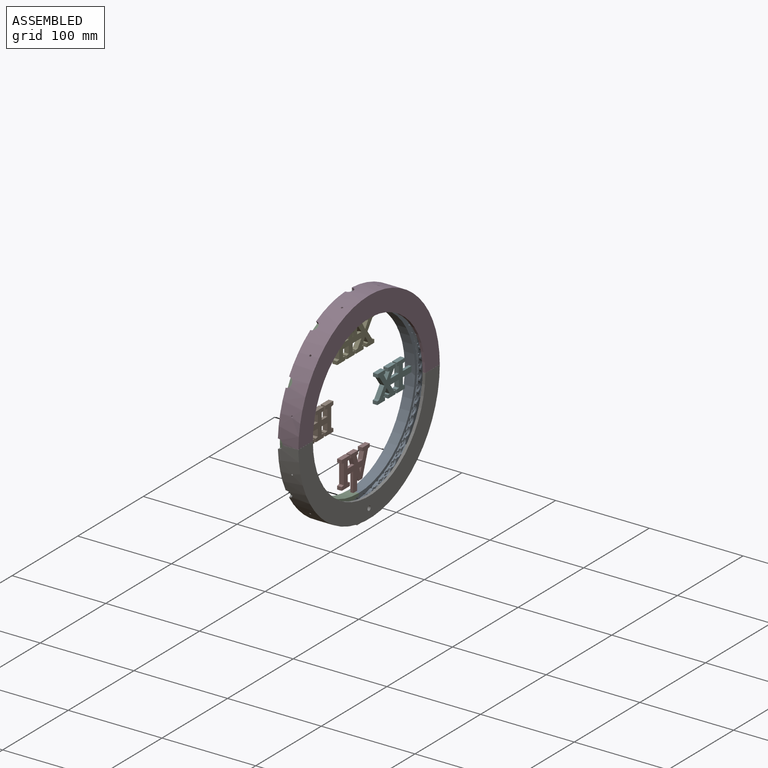
[diagram: assembled view]
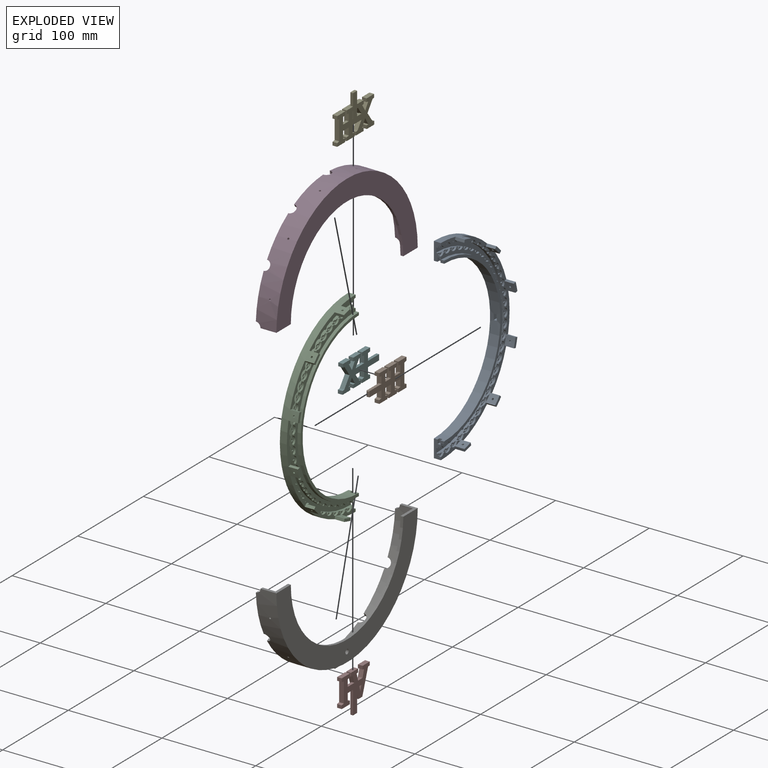
[diagram: exploded view]
GUIDED TOUR — MATED ASSEMBLY (Onshape document ff21faf0adc8174221badba9, AutoMate assembly ff21faf0adc8174221badba9_b4a665cec3b2968bef7a54c8_09225e2b91bc771aeb5ef12d_default)

This assembly has 8 components, labeled P0..P7 below (a component is one placed occurrence of a part; the same part can appear more than once), held together by 6 mates. A mate is a constraint between two components; its type names the relative motion it leaves free:
  FASTENED — locks the two components together rigidly (no relative motion).
Axis/direction vectors are unit vectors and 'through' points are millimeter coordinates, both in the assembly's world frame.

MATES
  1. FASTENED "Fest 2": P2 <-> P6, direction (0.000, 0.259, 0.966) through (-78.31, -98.61, -66.62) mm
  2. FASTENED "Fest 5": P1 <-> P2, direction (0.000, -1.000, 0.000) through (-85.31, -161.50, 34.56) mm
  3. FASTENED "Fest 3": P3 <-> P2, direction (0.000, 0.259, -0.966) through (-78.31, -98.61, 135.74) mm
  4. FASTENED "Fest 1": P2 <-> P4, direction (0.000, 0.000, -1.000) through (-85.31, -71.50, 124.56) mm
  5. FASTENED "Fest 6": P0 <-> P5, direction (0.000, -1.000, 0.000) through (-85.31, 18.50, 34.56) mm
  6. FASTENED "Fest 4": P7 <-> P2, direction (0.000, 0.000, -1.000) through (-85.31, -71.50, -55.44) mm

ASSEMBLY ORDER
  1. P2 — the base component [order heuristic]
  2. P1 [order verified]
  3. P3 — core [order heuristic]
  4. P4 — core [order heuristic]
  5. P6 — core [order heuristic]
  6. P5 [order verified]
  7. P7 [order verified]
  8. P0 — core [order heuristic]
Order-tag legend:
  [order verified] — this step's position reverses a verified removal order: the component was checked to insert without passing through the ones already placed.
  [order heuristic] — the first 5 components form the assembly's core: parts whose collision-free extraction could not be verified, listed in mate-graph order.

Of the 8 components, 7 carry the full construction recipe — the FeatureScript program that regenerates the part's solid from scratch; the rest are supplied as boundary geometry only.
Each toured component is shown spotlighted twice — in the assembled view, then in the exploded view, where a leader line traces a displaced component back to its assembled socket (saturated green if recipe-attached, orange if geometry-only; every other component desaturated gray) — followed by its recipe or geometry summary and the mates that hold it.
NOTE — this tour is split across 2 documents so each fits a 32k-token context. This is document 1: the component sections continue in the remaining 1 document, each repeating the header above.
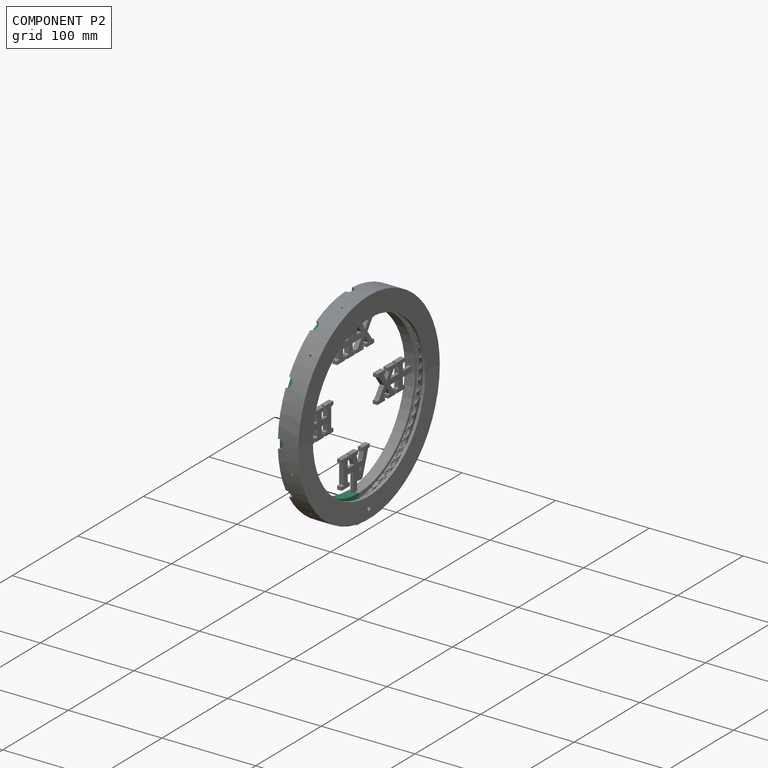
[diagram: component P2 — assembled]
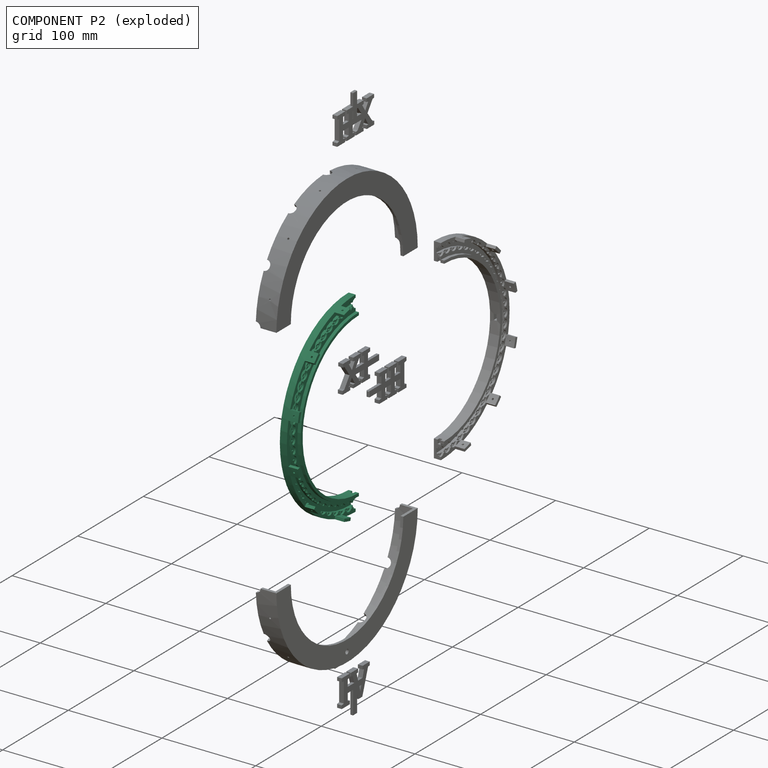
[diagram: component P2 — exploded]
COMPONENT P2 — same part as P0 (CADFS 00784737); its construction recipe is shown at P0.
Held by: FASTENED mate "Fest 2" to P6; FASTENED mate "Fest 5" to P1; FASTENED mate "Fest 3" to P3; FASTENED mate "Fest 1" to P4; FASTENED mate "Fest 4" to P7.
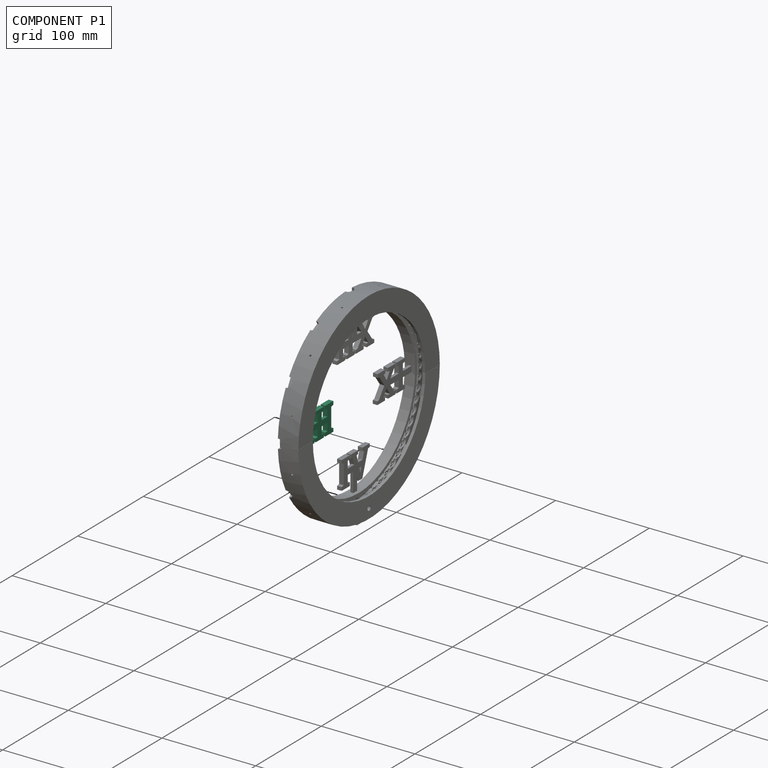
[diagram: component P1 — assembled]
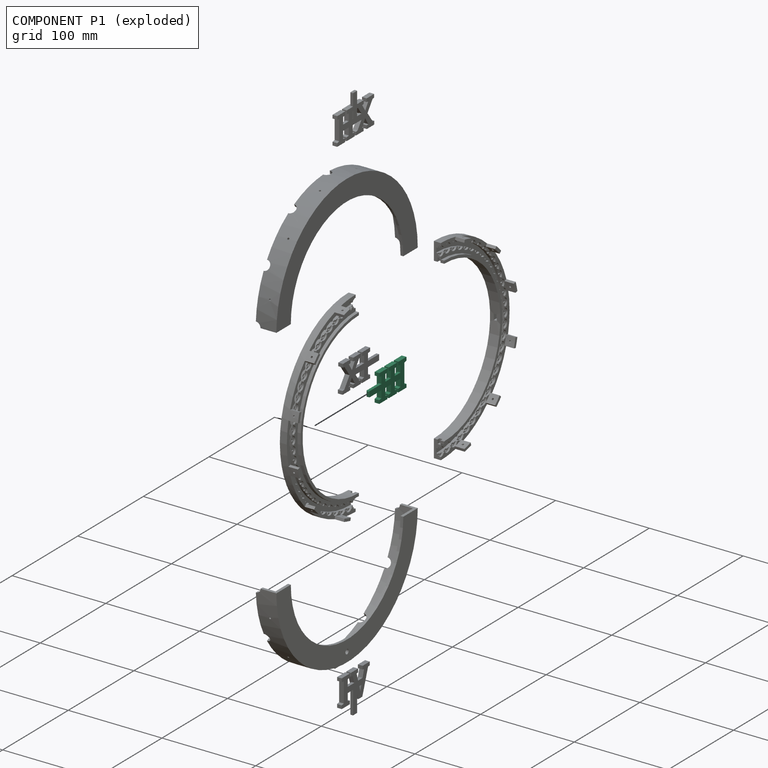
[diagram: component P1 — exploded]
COMPONENT P1 — recipe-attached (CADFS 00784754, mesh-verified: the recipe's output STEP matches this component's geometry to below the mesh-comparison resolution (tessellation chordal tolerance ~0.0964 mm)).
Held by: FASTENED mate "Fest 5" to P2.
Construction recipe (FeatureScript — the CAD program that rebuilds this solid; sketch coordinates are in the units given by the * unit suffixes, e.g. mm):

FeatureScript 2656;
import(path : "onshape/std/geometry.fs", version : "2656.0");
import(path : "onshape/std/common.fs", version : "2656.0");
const mm = millimeter;
const VERTEX = EntityType.VERTEX;
const EDGE = EntityType.EDGE;
const FACE = EntityType.FACE;
const BODY = EntityType.BODY;
function v(x, y){return vector(x, y);}
function OD(order){return orderDisambiguation(order);}
function OSD(set){return originalSetDisambiguation(set);}
function TD(topology){return topologyDisambiguation(topology);}
function TDD(query){return trueDependencyDisambiguation(query);}
function sQuery(a, b, c) {return sketchEntityQuery(a, b, c);}

annotation { "Feature Type Name" : "Feature", "Feature Type Description" : "" }
export const myFeature = defineFeature(function(context is Context, id is Id, definition is map)
    precondition{}
    {
        {
            var Q0;
            Q0=qCreatedBy(makeId("Top.planeOp"),FACE);
            var sketch = newSketch(context, id + "F0", { "sketchPlane" : qUnion([Q0])});
            skLineSegment(sketch, "E0.bottom", {"start": v(-15.03, 15) * mm, "end": v(15.03, 15) * mm, "construction": true});
            skLineSegment(sketch, "E0.left", {"start": v(-15.03, 15) * mm, "end": v(-15.03, 0) * mm, "construction": true});
            skLineSegment(sketch, "E0.right", {"start": v(15.03, 15) * mm, "end": v(15.03, -7.5) * mm, "construction": true});
            skText(sketch, "E1", { "text": "III", "fontName": "RobotoSlab-Bold.ttf"});
            skLineSegment(sketch, "E2.bottom", {"start": v(-12.5, 3) * mm, "end": v(12.5, 3) * mm});
            skLineSegment(sketch, "E2.top", {"start": v(-12.5, -3) * mm, "end": v(12.5, -3) * mm});
            skLineSegment(sketch, "E3.bottom", {"start": v(12.5, 3) * mm, "end": v(35.47, 3) * mm});
            skLineSegment(sketch, "E3.top", {"start": v(12.5, -3) * mm, "end": v(35.47, -3) * mm});
            skLineSegment(sketch, "E3.right", {"start": v(35.47, 3) * mm, "end": v(35.47, -3) * mm});
            const initialGuessF0  = {"E1": [-0.02247, -0.015, 1, 0, 0.03]};
            skSetInitialGuess(sketch, initialGuessF0);
            skSolve(sketch);
        }
        {
            var Q0;
            Q0=makeQuery(id+"F0.imprint","IMPRINT",FACE,{"disambiguationData":[TD([[makeQuery(id+"F0.imprint","IMPRINT",EDGE,{"derivedFrom":sQuery(id+"F0.wireOp",EDGE,"E1.sketch_text.stroke-0")}),-1.0]])]});
            var Q1;
            Q1=makeQuery(id+"F0.imprint","IMPRINT",FACE,{"disambiguationData":[TD([[makeQuery(id+"F0.imprint","IMPRINT",EDGE,{"derivedFrom":sQuery(id+"F0.wireOp",EDGE,"E1.sketch_text.stroke-12")}),-1.0]])]});
            var Q2;
            {var subQ0=sQuery(id+"F0.wireOp",EDGE,"E2.bottom");var subQ1=sQuery(id+"F0.wireOp",EDGE,"E1.sketch_text.stroke-16");var subQ2=makeQuery(id+"F0.imprint","INTERSECT",VERTEX,{"derivedFrom":[subQ1,subQ0]});Q2=makeQuery(id+"F0.imprint","IMPRINT",FACE,{"disambiguationData":[TD([[makeQuery(id+"F0.imprint","IMPRINT",EDGE,{"disambiguationData":[TD([[subQ2,-1.0]])],"derivedFrom":subQ1}),-1.0]])]});}
            var Q3;
            {var subQ0=sQuery(id+"F0.wireOp",EDGE,"E1.sketch_text.stroke-17");Q3=makeQuery(id+"F0.imprint","IMPRINT",FACE,{"disambiguationData":[TD([[makeQuery(id+"F0.imprint","IMPRINT",EDGE,{"derivedFrom":subQ0}),-1.0]])]});}
            var Q4;
            Q4=makeQuery(id+"F0.imprint","IMPRINT",FACE,{"disambiguationData":[TD([[makeQuery(id+"F0.imprint","IMPRINT",EDGE,{"derivedFrom":sQuery(id+"F0.wireOp",EDGE,"E1.sketch_text.stroke-24")}),-1.0]])]});
            var Q5;
            {var subQ0=sQuery(id+"F0.wireOp",EDGE,"E3.bottom");var subQ9=sQuery(id+"F0.wireOp",EDGE,"E1.sketch_text.stroke-28");var subQ10=makeQuery(id+"F0.imprint","INTERSECT",VERTEX,{"derivedFrom":[subQ9,subQ0]});Q5=makeQuery(id+"F0.imprint","IMPRINT",FACE,{"disambiguationData":[TD([[makeQuery(id+"F0.imprint","IMPRINT",EDGE,{"disambiguationData":[TD([[subQ10,-1.0]])],"derivedFrom":subQ9}),-1.0]])]});}
            var Q6;
            {var subQ0=sQuery(id+"F0.wireOp",EDGE,"E1.sketch_text.stroke-29");Q6=makeQuery(id+"F0.imprint","IMPRINT",FACE,{"disambiguationData":[TD([[makeQuery(id+"F0.imprint","IMPRINT",EDGE,{"derivedFrom":subQ0}),-1.0]])]});}
            extrude(context, id + "F1", {"entities" : qUnion([Q0, Q1, Q2, Q3, Q4, Q5, Q6]), "depth" : 5 * mm, "offsetDistance" : 25 * mm});
        }
        {
            var Q0;
            {var subQ0=sQuery(id+"F0.wireOp",EDGE,"E2.bottom");var subQ1=sQuery(id+"F0.wireOp",EDGE,"E1.sketch_text.stroke-4");var subQ2=makeQuery(id+"F0.imprint","INTERSECT",VERTEX,{"derivedFrom":[subQ1,subQ0]});Q0=makeQuery(id+"F0.imprint","IMPRINT",FACE,{"disambiguationData":[TD([[makeQuery(id+"F0.imprint","IMPRINT",EDGE,{"disambiguationData":[TD([[subQ2,-1.0]])],"derivedFrom":subQ1}),1.0]])]});}
            var Q1;
            {var subQ0=sQuery(id+"F0.wireOp",EDGE,"E2.bottom");var subQ1=sQuery(id+"F0.wireOp",EDGE,"E1.sketch_text.stroke-16");var subQ2=makeQuery(id+"F0.imprint","INTERSECT",VERTEX,{"derivedFrom":[subQ1,subQ0]});Q1=makeQuery(id+"F0.imprint","IMPRINT",FACE,{"disambiguationData":[TD([[makeQuery(id+"F0.imprint","IMPRINT",EDGE,{"disambiguationData":[TD([[subQ2,-1.0]])],"derivedFrom":subQ1}),1.0]])]});}
            var Q2;
            {var subQ5=sQuery(id+"F0.wireOp",EDGE,"E3.right");Q2=makeQuery(id+"F0.imprint","IMPRINT",FACE,{"disambiguationData":[TD([[makeQuery(id+"F0.imprint","IMPRINT",EDGE,{"derivedFrom":subQ5}),-1.0]])]});}
            extrude(context, id + "F2", {"entities" : qUnion([Q0, Q1, Q2]), "operationType" : NewBodyOperationType.ADD, "depth" : 3 * mm, "offsetDistance" : 25 * mm});
        }
        {
            var Q0;
            Q0=makeQuery(id+"F2.opExtrude","CAP_EDGE",EDGE,{"disambiguationData":[OSD([sQuery(id+"F0.wireOp",EDGE,"E3.right")])],"isStart":false});
            var Q1;
            Q1=makeQuery(id+"F2.opExtrude","SWEPT_EDGE",EDGE,{"disambiguationData":[OSD([sQuery(id+"F0.wireOp",EDGE,"E3.bottom"),sQuery(id+"F0.wireOp",EDGE,"E3.right")])]});
            var Q2;
            Q2=makeQuery(id+"F2.opExtrude","CAP_EDGE",EDGE,{"disambiguationData":[OSD([sQuery(id+"F0.wireOp",EDGE,"E3.right")])],"isStart":true});
            var Q3;
            Q3=makeQuery(id+"F2.opExtrude","SWEPT_EDGE",EDGE,{"disambiguationData":[OSD([sQuery(id+"F0.wireOp",EDGE,"E3.top"),sQuery(id+"F0.wireOp",EDGE,"E3.right")])]});
            chamfer(context, id + "F3", {"entities" : qUnion([Q0, Q1, Q2, Q3]), "width" : 0.5 * mm, "tangentPropagation" : true});
        }
    });
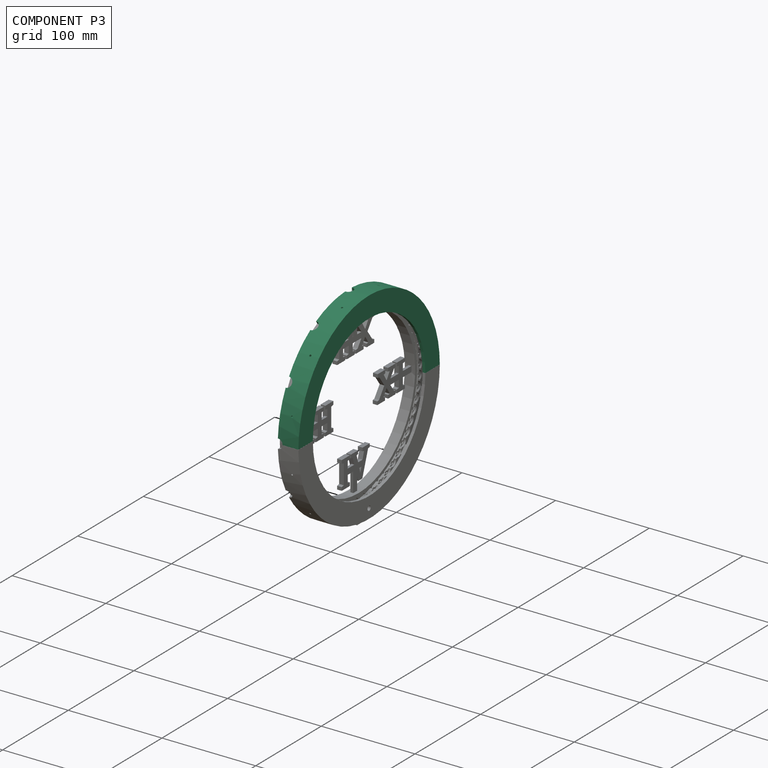
[diagram: component P3 — assembled]
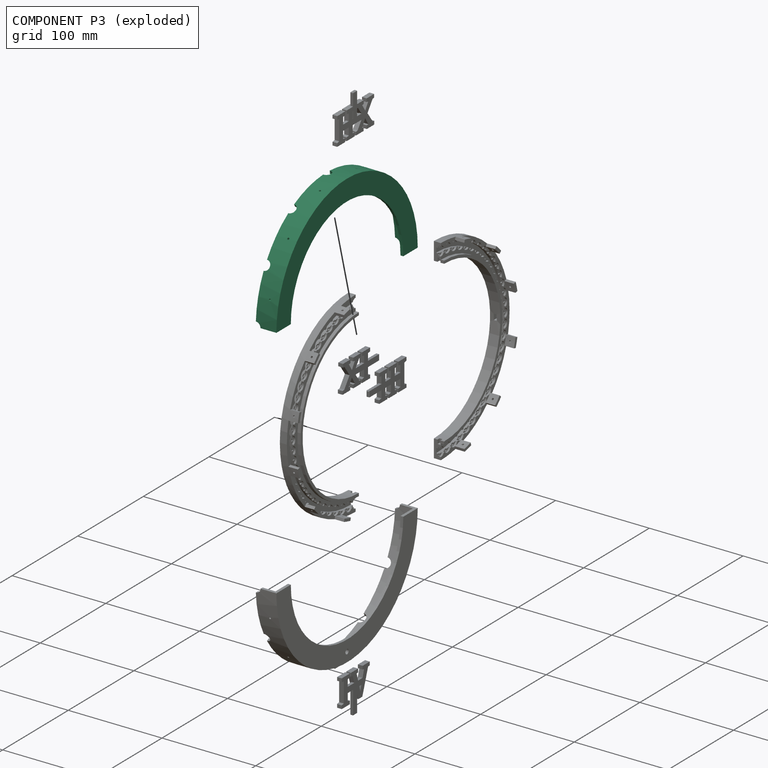
[diagram: component P3 — exploded]
COMPONENT P3 — recipe-attached (CADFS 00784741, mesh-verified: the recipe's output STEP matches this component's geometry to below the mesh-comparison resolution (tessellation chordal tolerance ~0.363 mm)).
Held by: FASTENED mate "Fest 3" to P2.
Construction recipe (FeatureScript — the CAD program that rebuilds this solid; sketch coordinates are in the units given by the * unit suffixes, e.g. mm):

FeatureScript 2656;
import(path : "onshape/std/geometry.fs", version : "2656.0");
import(path : "onshape/std/common.fs", version : "2656.0");
const mm = millimeter;
const VERTEX = EntityType.VERTEX;
const EDGE = EntityType.EDGE;
const FACE = EntityType.FACE;
const BODY = EntityType.BODY;
function v(x, y){return vector(x, y);}
function OD(order){return orderDisambiguation(order);}
function OSD(set){return originalSetDisambiguation(set);}
function TD(topology){return topologyDisambiguation(topology);}
function TDD(query){return trueDependencyDisambiguation(query);}
function sQuery(a, b, c) {return sketchEntityQuery(a, b, c);}

annotation { "Feature Type Name" : "Feature", "Feature Type Description" : "" }
export const myFeature = defineFeature(function(context is Context, id is Id, definition is map)
    precondition{}
    {
        {
            var Q0;
            Q0=qCreatedBy(makeId("Top.planeOp"),FACE);
            var sketch = newSketch(context, id + "F0", { "sketchPlane" : qUnion([Q0])});
            skLineSegment(sketch, "E0", {"start": v(-37.45, 0) * mm, "end": v(31.85, 0) * mm, "construction": true});
            skLineSegment(sketch, "E1", {"start": v(-6.93, 104.73) * mm, "end": v(-6.93, 85.73) * mm});
            skLineSegment(sketch, "E2", {"start": v(-6.93, 85.73) * mm, "end": v(-9.93, 85.73) * mm});
            skLineSegment(sketch, "E3", {"start": v(-9.93, 85.73) * mm, "end": v(-9.93, 107.73) * mm});
            skLineSegment(sketch, "E4", {"start": v(-6.93, 104.73) * mm, "end": v(9.07, 104.73) * mm});
            skLineSegment(sketch, "E5", {"start": v(12.07, 107.73) * mm, "end": v(12.07, 104.73) * mm});
            skLineSegment(sketch, "E6", {"start": v(-9.93, 107.73) * mm, "end": v(12.07, 107.73) * mm});
            skLineSegment(sketch, "E7.trimOffspring", {"start": v(10.07, 104.73) * mm, "end": v(12.07, 104.73) * mm});
            skLineSegment(sketch, "E8", {"start": v(9.07, 104.73) * mm, "end": v(10.07, 104.73) * mm});
            skSolve(sketch);
        }
        {
            var Q0;
            Q0 = qSketchRegion(id + "F0", true);
            var Q1;
            Q1=sQuery(id+"F0.wireOp",EDGE,"E0");
            revolve(context, id + "F1", {"surfaceOperationType" : NewSurfaceOperationType.NEW, "entities" : qUnion([Q0]), "axis" : qUnion([Q1]), "revolveType" : RevolveType.ONE_DIRECTION, "angle" : 180 * degree});
        }
        {
            var Q0;
            Q0=qCreatedBy(makeId("Right.planeOp"),FACE);
            var sketch = newSketch(context, id + "F2", { "sketchPlane" : qUnion([Q0])});
            skLineSegment(sketch, "E9", {"start": v(0, 0) * mm, "end": v(61.84, 107.11) * mm, "construction": true});
            skLineSegment(sketch, "E10", {"start": v(0, 0) * mm, "end": v(0, 110.2) * mm, "construction": true});
            skLineSegment(sketch, "E11", {"start": v(0, 0) * mm, "end": v(-59.27, 102.65) * mm, "construction": true});
            skLineSegment(sketch, "E12", {"start": v(0, 0) * mm, "end": v(108.53, 62.66) * mm, "construction": true});
            skLineSegment(sketch, "E13", {"start": v(0, 0) * mm, "end": v(-111.98, 64.65) * mm, "construction": true});
            skLineSegment(sketch, "E14", {"start": v(0, 0) * mm, "end": v(-132.1, 0) * mm, "construction": true});
            skLineSegment(sketch, "E15", {"start": v(0, 0) * mm, "end": v(126.53, 0) * mm, "construction": true});
            skPoint(sketch, "E16", {"position": v(-59.27, 102.65) * mm});
            skPoint(sketch, "E17", {"position": v(-111.98, 64.65) * mm});
            skPoint(sketch, "E18", {"position": v(-132.1, 0) * mm});
            skPoint(sketch, "E19", {"position": v(0, 110.2) * mm});
            skPoint(sketch, "E20", {"position": v(61.84, 107.11) * mm});
            skPoint(sketch, "E21", {"position": v(108.53, 62.66) * mm});
            skPoint(sketch, "E22", {"position": v(126.53, 0) * mm});
            skLineSegment(sketch, "E23", {"start": v(0, 0) * mm, "end": v(-120.74, 32.35) * mm, "construction": true});
            skLineSegment(sketch, "E24.MirrorCS", {"start": v(0, 0) * mm, "end": v(-88.39, 88.39) * mm, "construction": true});
            skLineSegment(sketch, "E25.MirrorCS", {"start": v(0, 0) * mm, "end": v(-32.35, 120.74) * mm, "construction": true});
            skLineSegment(sketch, "E26.MirrorCS", {"start": v(0, 0) * mm, "end": v(32.35, 120.74) * mm, "construction": true});
            skLineSegment(sketch, "E27.MirrorCS", {"start": v(0, 0) * mm, "end": v(88.39, 88.39) * mm, "construction": true});
            skLineSegment(sketch, "E28.MirrorCS", {"start": v(0, 0) * mm, "end": v(120.74, 32.35) * mm, "construction": true});
            skSolve(sketch);
        }
        {
            var Q0;
            Q0=qCreatedBy(makeId("Front.planeOp"),FACE);
            var Q1;
            Q1=sQuery(id+"F2.wireOp",EDGE,"E13");
            cPlane(context, id + "F3", {"entities" : qUnion([Q0, Q1]), "cplaneType" : CPlaneType.LINE_ANGLE, "offset" : 25 * mm, "angle" : 0 * degree, "width" : 150 * mm, "height" : 150 * mm});
        }
        {
            var Q0;
            Q0=qCreatedBy(id+"F3.planeOp",FACE);
            var sketch = newSketch(context, id + "F4", { "sketchPlane" : qUnion([Q0])});
            skArc(sketch, "E29", {"start": v(12.07, -113.43) * mm, "mid": v(17.27, -105.94) * mm, "end": v(12.07, -98.44) * mm});
            skLineSegment(sketch, "E30", {"start": v(12.07, -113.43) * mm, "end": v(12.07, -98.44) * mm});
            skSolve(sketch);
        }
        {
            var Q0;
            Q0 = qSketchRegion(id + "F4", true);
            var Q1;
            Q1=sQuery(id+"F4.wireOp",EDGE,"E30");
            revolve(context, id + "F5", {"operationType" : NewBodyOperationType.REMOVE, "surfaceOperationType" : NewSurfaceOperationType.NEW, "entities" : qUnion([Q0]), "axis" : qUnion([Q1]), "revolveType" : RevolveType.FULL, "oppositeDirection" : true});
        }
        {
            var Q0;
            Q0=sQuery(id+"F2.wireOp",EDGE,"E11");
            cPlane(context, id + "F6", {"entities" : qUnion([Q0]), "cplaneType" : CPlaneType.LINE_ANGLE, "offset" : 25 * mm, "angle" : 90 * degree, "width" : 150 * mm, "height" : 150 * mm});
        }
        {
            var Q0;
            Q0=qCreatedBy(id+"F6.planeOp",FACE);
            var sketch = newSketch(context, id + "F7", { "sketchPlane" : qUnion([Q0])});
            skArc(sketch, "E31", {"start": v(-12.1, 98.77) * mm, "mid": v(-6.9, 106.26) * mm, "end": v(-12.1, 113.76) * mm});
            skLineSegment(sketch, "E32", {"start": v(-12.1, 98.77) * mm, "end": v(-12.1, 113.76) * mm});
            skSolve(sketch);
        }
        {
            var Q0;
            Q0 = qSketchRegion(id + "F7", true);
            var Q1;
            Q1=sQuery(id+"F7.wireOp",EDGE,"E32");
            revolve(context, id + "F8", {"operationType" : NewBodyOperationType.REMOVE, "surfaceOperationType" : NewSurfaceOperationType.NEW, "entities" : qUnion([Q0]), "axis" : qUnion([Q1]), "revolveType" : RevolveType.FULL, "oppositeDirection" : true});
        }
        {
            var Q0;
            Q0=sQuery(id+"F2.wireOp",EDGE,"E10");
            cPlane(context, id + "F9", {"entities" : qUnion([Q0]), "cplaneType" : CPlaneType.LINE_ANGLE, "offset" : 25 * mm, "angle" : 90 * degree, "width" : 150 * mm, "height" : 150 * mm});
        }
        {
            var Q0;
            Q0=qCreatedBy(id+"F9.planeOp",FACE);
            var sketch = newSketch(context, id + "F10", { "sketchPlane" : qUnion([Q0])});
            skArc(sketch, "E33", {"start": v(-12.07, 98.66) * mm, "mid": v(-6.87, 106.16) * mm, "end": v(-12.07, 113.65) * mm});
            skLineSegment(sketch, "E34", {"start": v(-12.07, 98.66) * mm, "end": v(-12.07, 113.65) * mm});
            skSolve(sketch);
        }
        {
            var Q0;
            Q0 = qSketchRegion(id + "F10", true);
            var Q1;
            Q1=sQuery(id+"F10.wireOp",EDGE,"E34");
            revolve(context, id + "F11", {"operationType" : NewBodyOperationType.REMOVE, "surfaceOperationType" : NewSurfaceOperationType.NEW, "entities" : qUnion([Q0]), "axis" : qUnion([Q1]), "revolveType" : RevolveType.FULL, "oppositeDirection" : true});
        }
        {
            var Q0;
            Q0=sQuery(id+"F2.wireOp",EDGE,"E9");
            cPlane(context, id + "F12", {"entities" : qUnion([Q0]), "cplaneType" : CPlaneType.LINE_ANGLE, "offset" : 25 * mm, "angle" : 90 * degree, "width" : 150 * mm, "height" : 150 * mm});
        }
        {
            var Q0;
            Q0=qCreatedBy(id+"F12.planeOp",FACE);
            var sketch = newSketch(context, id + "F13", { "sketchPlane" : qUnion([Q0])});
            skArc(sketch, "E35", {"start": v(-12.07, 98.61) * mm, "mid": v(-6.87, 106.1) * mm, "end": v(-12.07, 113.6) * mm});
            skLineSegment(sketch, "E36", {"start": v(-12.07, 98.61) * mm, "end": v(-12.07, 113.6) * mm});
            skSolve(sketch);
        }
        {
            var Q0;
            Q0 = qSketchRegion(id + "F13", true);
            var Q1;
            Q1=sQuery(id+"F13.wireOp",EDGE,"E36");
            revolve(context, id + "F14", {"operationType" : NewBodyOperationType.REMOVE, "surfaceOperationType" : NewSurfaceOperationType.NEW, "entities" : qUnion([Q0]), "axis" : qUnion([Q1]), "revolveType" : RevolveType.FULL, "oppositeDirection" : true});
        }
        {
            var Q0;
            Q0=sQuery(id+"F2.wireOp",EDGE,"E12");
            cPlane(context, id + "F15", {"entities" : qUnion([Q0]), "cplaneType" : CPlaneType.LINE_ANGLE, "offset" : 25 * mm, "angle" : 0 * degree, "width" : 150 * mm, "height" : 150 * mm});
        }
        {
            var Q0;
            Q0=qCreatedBy(id+"F15.planeOp",FACE);
            var sketch = newSketch(context, id + "F16", { "sketchPlane" : qUnion([Q0])});
            skArc(sketch, "E37", {"start": v(12.07, 98.66) * mm, "mid": v(17.27, 106.16) * mm, "end": v(12.07, 113.65) * mm});
            skLineSegment(sketch, "E38", {"start": v(12.07, 98.66) * mm, "end": v(12.07, 113.65) * mm});
            skSolve(sketch);
        }
        {
            var Q0;
            Q0 = qSketchRegion(id + "F16", true);
            var Q1;
            Q1=sQuery(id+"F16.wireOp",EDGE,"E38");
            revolve(context, id + "F17", {"operationType" : NewBodyOperationType.REMOVE, "surfaceOperationType" : NewSurfaceOperationType.NEW, "entities" : qUnion([Q0]), "axis" : qUnion([Q1]), "revolveType" : RevolveType.FULL, "oppositeDirection" : true});
        }
        {
            var Q0;
            Q0=sQuery(id+"F2.wireOp",EDGE,"E23");
            cPlane(context, id + "F18", {"entities" : qUnion([Q0]), "cplaneType" : CPlaneType.LINE_ANGLE, "offset" : 25 * mm, "angle" : 0 * degree, "width" : 150 * mm, "height" : 150 * mm});
        }
        {
            var Q0;
            Q0=sQuery(id+"F2.wireOp",EDGE,"E24.MirrorCS");
            cPlane(context, id + "F19", {"entities" : qUnion([Q0]), "cplaneType" : CPlaneType.LINE_ANGLE, "offset" : 25 * mm, "angle" : 0 * degree, "width" : 150 * mm, "height" : 150 * mm});
        }
        {
            var Q0;
            Q0=sQuery(id+"F2.wireOp",EDGE,"E25.MirrorCS");
            cPlane(context, id + "F20", {"entities" : qUnion([Q0]), "cplaneType" : CPlaneType.LINE_ANGLE, "offset" : 25 * mm, "angle" : 90 * degree, "width" : 150 * mm, "height" : 150 * mm});
        }
        {
            var Q0;
            Q0=sQuery(id+"F2.wireOp",EDGE,"E26.MirrorCS");
            cPlane(context, id + "F21", {"entities" : qUnion([Q0]), "cplaneType" : CPlaneType.LINE_ANGLE, "offset" : 25 * mm, "angle" : 90 * degree, "width" : 150 * mm, "height" : 150 * mm});
        }
        {
            var Q0;
            Q0=sQuery(id+"F2.wireOp",EDGE,"E27.MirrorCS");
            cPlane(context, id + "F22", {"entities" : qUnion([Q0]), "cplaneType" : CPlaneType.LINE_ANGLE, "offset" : 25 * mm, "angle" : 0 * degree, "width" : 150 * mm, "height" : 150 * mm});
        }
        {
            var Q0;
            Q0=sQuery(id+"F2.wireOp",EDGE,"E28.MirrorCS");
            cPlane(context, id + "F23", {"entities" : qUnion([Q0]), "cplaneType" : CPlaneType.LINE_ANGLE, "offset" : 25 * mm, "angle" : 0 * degree, "width" : 150 * mm, "height" : 150 * mm});
        }
        {
            var Q0;
            Q0=qCreatedBy(id+"F18.planeOp",FACE);
            var sketch = newSketch(context, id + "F24", { "sketchPlane" : qUnion([Q0])});
            skLineSegment(sketch, "E39.bottom", {"start": v(-1.5, 110.33) * mm, "end": v(-0.5, 110.33) * mm});
            skLineSegment(sketch, "E39.top", {"start": v(-1.5, 102.33) * mm, "end": v(-0.5, 102.33) * mm});
            skLineSegment(sketch, "E39.left", {"start": v(-1.5, 110.33) * mm, "end": v(-1.5, 102.33) * mm});
            skLineSegment(sketch, "E39.right", {"start": v(-0.5, 110.33) * mm, "end": v(-0.5, 102.33) * mm});
            skSolve(sketch);
        }
        {
            var Q0;
            Q0 = qSketchRegion(id + "F24", true);
            var Q1;
            Q1=sQuery(id+"F24.wireOp",EDGE,"E39.right");
            revolve(context, id + "F25", {"operationType" : NewBodyOperationType.REMOVE, "surfaceOperationType" : NewSurfaceOperationType.NEW, "entities" : qUnion([Q0]), "axis" : qUnion([Q1]), "revolveType" : RevolveType.FULL, "oppositeDirection" : true});
        }
        {
            var Q0;
            Q0=qCreatedBy(id+"F19.planeOp",FACE);
            var sketch = newSketch(context, id + "F26", { "sketchPlane" : qUnion([Q0])});
            skLineSegment(sketch, "E40.bottom", {"start": v(-1.5, 111.6) * mm, "end": v(-0.5, 111.6) * mm});
            skLineSegment(sketch, "E40.top", {"start": v(-1.5, 103.6) * mm, "end": v(-0.5, 103.6) * mm});
            skLineSegment(sketch, "E40.left", {"start": v(-1.5, 111.6) * mm, "end": v(-1.5, 103.6) * mm});
            skLineSegment(sketch, "E40.right", {"start": v(-0.5, 111.6) * mm, "end": v(-0.5, 103.6) * mm});
            skSolve(sketch);
        }
        {
            var Q0;
            Q0 = qSketchRegion(id + "F26", true);
            var Q1;
            Q1=sQuery(id+"F26.wireOp",EDGE,"E40.right");
            revolve(context, id + "F27", {"operationType" : NewBodyOperationType.REMOVE, "surfaceOperationType" : NewSurfaceOperationType.NEW, "entities" : qUnion([Q0]), "axis" : qUnion([Q1]), "revolveType" : RevolveType.FULL, "oppositeDirection" : true});
        }
        {
            var Q0;
            Q0=qCreatedBy(id+"F20.planeOp",FACE);
            var sketch = newSketch(context, id + "F28", { "sketchPlane" : qUnion([Q0])});
            skLineSegment(sketch, "E41.bottom", {"start": v(0.5, 111.69) * mm, "end": v(1.5, 111.69) * mm});
            skLineSegment(sketch, "E41.top", {"start": v(0.5, 103.69) * mm, "end": v(1.5, 103.69) * mm});
            skLineSegment(sketch, "E41.left", {"start": v(0.5, 111.69) * mm, "end": v(0.5, 103.69) * mm});
            skLineSegment(sketch, "E41.right", {"start": v(1.5, 111.69) * mm, "end": v(1.5, 103.69) * mm});
            skSolve(sketch);
        }
        {
            var Q0;
            Q0 = qSketchRegion(id + "F28", true);
            var Q1;
            Q1=sQuery(id+"F28.wireOp",EDGE,"E41.left");
            revolve(context, id + "F29", {"operationType" : NewBodyOperationType.REMOVE, "surfaceOperationType" : NewSurfaceOperationType.NEW, "entities" : qUnion([Q0]), "axis" : qUnion([Q1]), "revolveType" : RevolveType.FULL, "oppositeDirection" : true});
        }
        {
            var Q0;
            Q0=qCreatedBy(id+"F21.planeOp",FACE);
            var sketch = newSketch(context, id + "F30", { "sketchPlane" : qUnion([Q0])});
            skLineSegment(sketch, "E42.bottom", {"start": v(0.5, 112.04) * mm, "end": v(1.5, 112.04) * mm});
            skLineSegment(sketch, "E42.top", {"start": v(0.5, 104.04) * mm, "end": v(1.5, 104.04) * mm});
            skLineSegment(sketch, "E42.left", {"start": v(0.5, 112.04) * mm, "end": v(0.5, 104.04) * mm});
            skLineSegment(sketch, "E42.right", {"start": v(1.5, 112.04) * mm, "end": v(1.5, 104.04) * mm});
            skSolve(sketch);
        }
        {
            var Q0;
            Q0 = qSketchRegion(id + "F30", true);
            var Q1;
            Q1=sQuery(id+"F30.wireOp",EDGE,"E42.left");
            revolve(context, id + "F31", {"operationType" : NewBodyOperationType.REMOVE, "surfaceOperationType" : NewSurfaceOperationType.NEW, "entities" : qUnion([Q0]), "axis" : qUnion([Q1]), "revolveType" : RevolveType.FULL, "oppositeDirection" : true});
        }
        {
            var Q0;
            Q0=qCreatedBy(id+"F22.planeOp",FACE);
            var sketch = newSketch(context, id + "F32", { "sketchPlane" : qUnion([Q0])});
            skLineSegment(sketch, "E43.bottom", {"start": v(-1.5, 112) * mm, "end": v(-0.5, 112) * mm});
            skLineSegment(sketch, "E43.top", {"start": v(-1.5, 104) * mm, "end": v(-0.5, 104) * mm});
            skLineSegment(sketch, "E43.left", {"start": v(-1.5, 112) * mm, "end": v(-1.5, 104) * mm});
            skLineSegment(sketch, "E43.right", {"start": v(-0.5, 112) * mm, "end": v(-0.5, 104) * mm});
            skSolve(sketch);
        }
        {
            var Q0;
            Q0 = qSketchRegion(id + "F32", true);
            var Q1;
            Q1=sQuery(id+"F32.wireOp",EDGE,"E43.right");
            revolve(context, id + "F33", {"operationType" : NewBodyOperationType.REMOVE, "surfaceOperationType" : NewSurfaceOperationType.NEW, "entities" : qUnion([Q0]), "axis" : qUnion([Q1]), "revolveType" : RevolveType.FULL, "oppositeDirection" : true});
        }
        {
            var Q0;
            Q0=qCreatedBy(id+"F23.planeOp",FACE);
            var sketch = newSketch(context, id + "F34", { "sketchPlane" : qUnion([Q0])});
            skLineSegment(sketch, "E44.bottom", {"start": v(-1.5, 110.24) * mm, "end": v(-0.5, 110.24) * mm});
            skLineSegment(sketch, "E44.top", {"start": v(-1.5, 102.24) * mm, "end": v(-0.5, 102.24) * mm});
            skLineSegment(sketch, "E44.left", {"start": v(-1.5, 110.24) * mm, "end": v(-1.5, 102.24) * mm});
            skLineSegment(sketch, "E44.right", {"start": v(-0.5, 110.24) * mm, "end": v(-0.5, 102.24) * mm});
            skSolve(sketch);
        }
        {
            var Q0;
            Q0 = qSketchRegion(id + "F34", true);
            var Q1;
            Q1=sQuery(id+"F34.wireOp",EDGE,"E44.right");
            revolve(context, id + "F35", {"operationType" : NewBodyOperationType.REMOVE, "surfaceOperationType" : NewSurfaceOperationType.NEW, "entities" : qUnion([Q0]), "axis" : qUnion([Q1]), "revolveType" : RevolveType.FULL, "oppositeDirection" : true});
        }
        {
            var Q0;
            Q0=qCreatedBy(makeId("Top.planeOp"),FACE);
            var sketch = newSketch(context, id + "F36", { "sketchPlane" : qUnion([Q0])});
            skArc(sketch, "E45", {"start": v(12.07, 98.74) * mm, "mid": v(17.27, 106.24) * mm, "end": v(12.07, 113.73) * mm});
            skLineSegment(sketch, "E46", {"start": v(12.07, 98.74) * mm, "end": v(12.07, 113.73) * mm});
            skLineSegment(sketch, "E47.MirrorCS", {"start": v(12.07, -98.74) * mm, "end": v(12.07, -113.73) * mm});
            skArc(sketch, "E48.MirrorCS", {"start": v(12.07, -98.74) * mm, "mid": v(17.27, -106.24) * mm, "end": v(12.07, -113.73) * mm});
            skSolve(sketch);
        }
        {
            var Q0;
            Q0 = qSketchRegion(id + "F36", true);
            var Q1;
            Q1=sQuery(id+"F36.wireOp",EDGE,"E46");
            revolve(context, id + "F37", {"operationType" : NewBodyOperationType.REMOVE, "surfaceOperationType" : NewSurfaceOperationType.NEW, "entities" : qUnion([Q0]), "axis" : qUnion([Q1]), "revolveType" : RevolveType.ONE_DIRECTION, "oppositeDirection" : true, "angle" : 180 * degree});
        }
    });
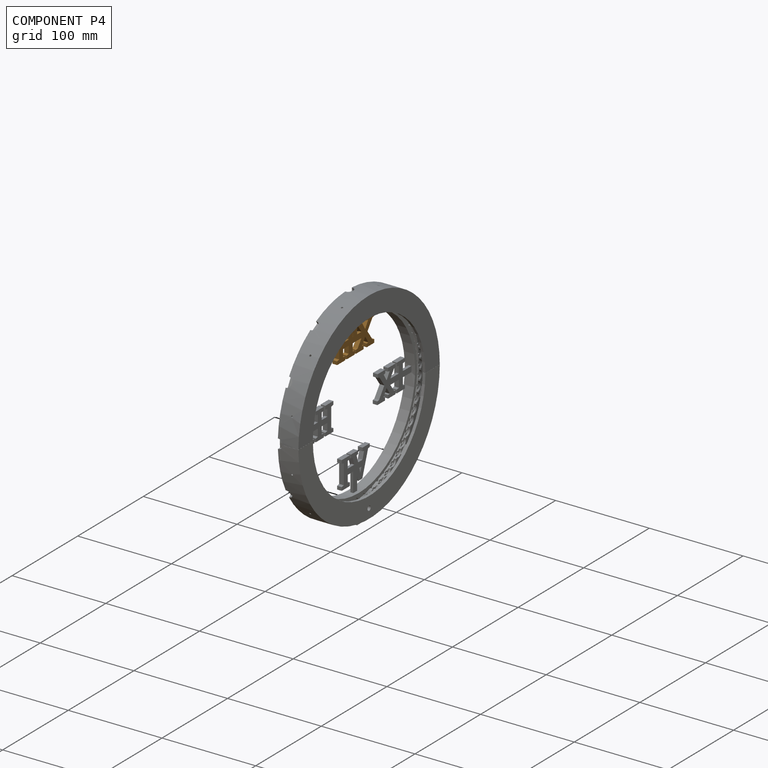
[diagram: component P4 — assembled]
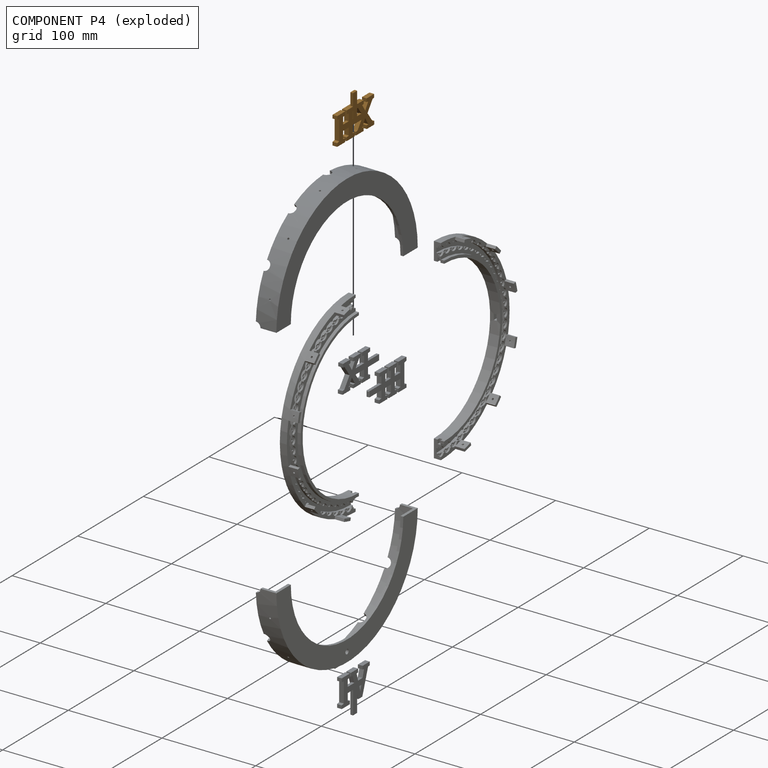
[diagram: component P4 — exploded]
COMPONENT P4 — geometry summary (no construction recipe available for this part):
  bounding box: 56.5 x 43.0 x 5.0 mm
  B-rep topology: 1 solid, 72 faces, 424 edges
  volume: 5230 mm^3 (43% of its bounding box)
Held by: FASTENED mate "Fest 1" to P2.
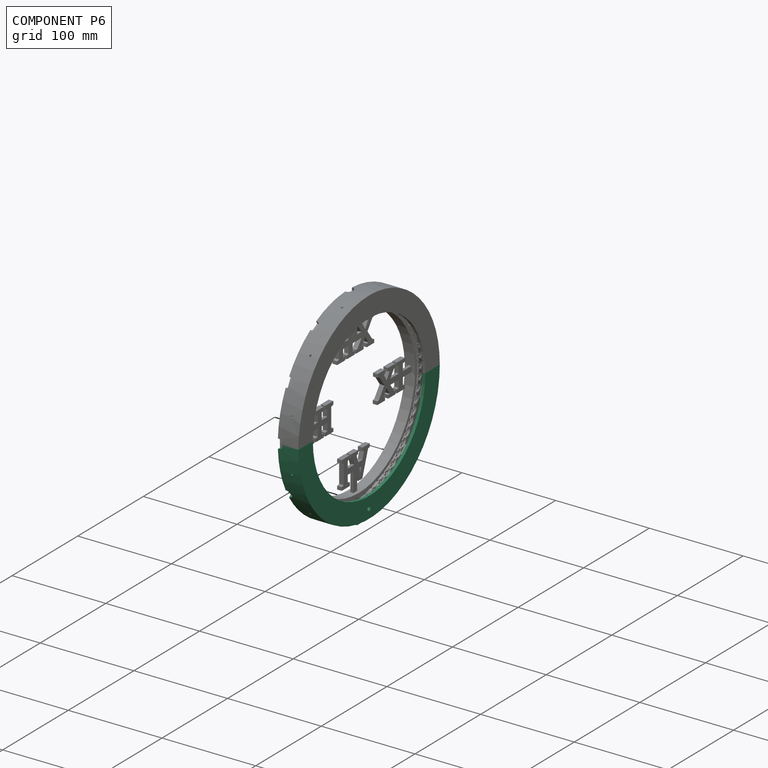
[diagram: component P6 — assembled]
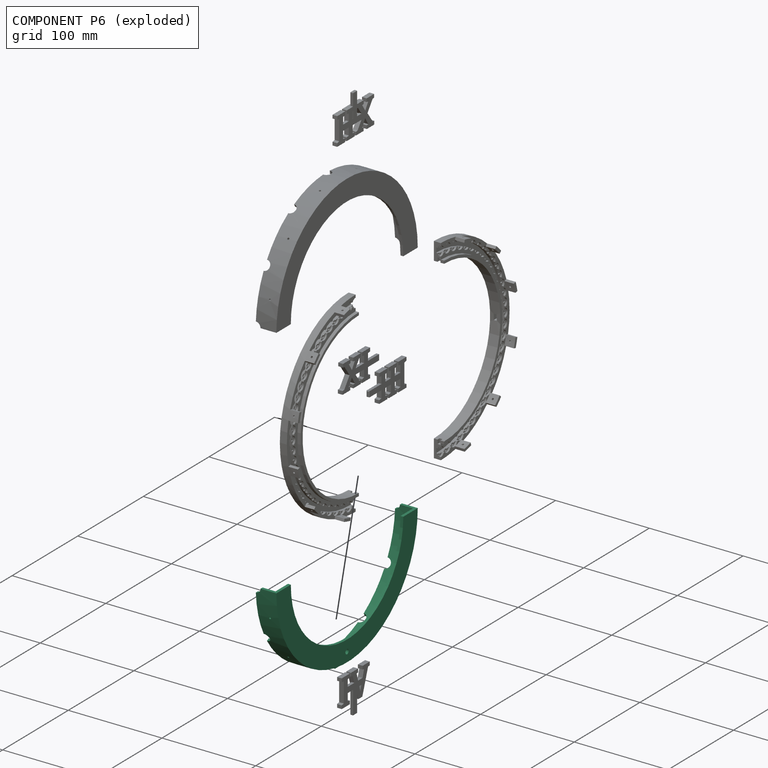
[diagram: component P6 — exploded]
COMPONENT P6 — recipe-attached (CADFS 00784743, mesh-verified: the recipe's output STEP matches this component's geometry to below the mesh-comparison resolution (tessellation chordal tolerance ~0.367 mm)).
Held by: FASTENED mate "Fest 2" to P2.
Construction recipe (FeatureScript — the CAD program that rebuilds this solid; sketch coordinates are in the units given by the * unit suffixes, e.g. mm):

FeatureScript 2656;
import(path : "onshape/std/geometry.fs", version : "2656.0");
import(path : "onshape/std/common.fs", version : "2656.0");
const mm = millimeter;
const VERTEX = EntityType.VERTEX;
const EDGE = EntityType.EDGE;
const FACE = EntityType.FACE;
const BODY = EntityType.BODY;
function v(x, y){return vector(x, y);}
function OD(order){return orderDisambiguation(order);}
function OSD(set){return originalSetDisambiguation(set);}
function TD(topology){return topologyDisambiguation(topology);}
function TDD(query){return trueDependencyDisambiguation(query);}
function sQuery(a, b, c) {return sketchEntityQuery(a, b, c);}

annotation { "Feature Type Name" : "Feature", "Feature Type Description" : "" }
export const myFeature = defineFeature(function(context is Context, id is Id, definition is map)
    precondition{}
    {
        {
            var Q0;
            Q0=qCreatedBy(makeId("Top.planeOp"),FACE);
            var sketch = newSketch(context, id + "F0", { "sketchPlane" : qUnion([Q0])});
            skLineSegment(sketch, "E0", {"start": v(-37.45, 0) * mm, "end": v(31.85, 0) * mm, "construction": true});
            skLineSegment(sketch, "E1", {"start": v(-6.93, 104.73) * mm, "end": v(-6.93, 85.73) * mm});
            skLineSegment(sketch, "E2", {"start": v(-6.93, 85.73) * mm, "end": v(-9.93, 85.73) * mm});
            skLineSegment(sketch, "E3", {"start": v(-9.93, 85.73) * mm, "end": v(-9.93, 107.73) * mm});
            skLineSegment(sketch, "E4", {"start": v(-6.93, 104.73) * mm, "end": v(9.07, 104.73) * mm});
            skLineSegment(sketch, "E5", {"start": v(12.07, 107.73) * mm, "end": v(12.07, 104.73) * mm});
            skLineSegment(sketch, "E6", {"start": v(-9.93, 107.73) * mm, "end": v(12.07, 107.73) * mm});
            skLineSegment(sketch, "E7.trimOffspring", {"start": v(10.07, 104.73) * mm, "end": v(12.07, 104.73) * mm});
            skLineSegment(sketch, "E8", {"start": v(9.07, 104.73) * mm, "end": v(10.07, 104.73) * mm});
            skSolve(sketch);
        }
        {
            var Q0;
            Q0=qSketchRegion(id+"F0",true);
            var Q1;
            Q1=sQuery(id+"F0.wireOp",EDGE,"E0");
            revolve(context, id + "F1", {"surfaceOperationType" : NewSurfaceOperationType.NEW, "entities" : qUnion([Q0]), "axis" : qUnion([Q1]), "revolveType" : RevolveType.ONE_DIRECTION, "angle" : 180 * degree});
        }
        {
            var Q0;
            Q0=qCreatedBy(makeId("Right.planeOp"),FACE);
            var sketch = newSketch(context, id + "F2", { "sketchPlane" : qUnion([Q0])});
            skLineSegment(sketch, "E9", {"start": v(0, 0) * mm, "end": v(61.84, 107.11) * mm, "construction": true});
            skLineSegment(sketch, "E10", {"start": v(0, 0) * mm, "end": v(0, 110.2) * mm, "construction": true});
            skLineSegment(sketch, "E11", {"start": v(0, 0) * mm, "end": v(-59.27, 102.65) * mm, "construction": true});
            skLineSegment(sketch, "E12", {"start": v(0, 0) * mm, "end": v(108.53, 62.66) * mm, "construction": true});
            skLineSegment(sketch, "E13", {"start": v(0, 0) * mm, "end": v(-111.98, 64.65) * mm, "construction": true});
            skLineSegment(sketch, "E14", {"start": v(0, 0) * mm, "end": v(-132.1, 0) * mm, "construction": true});
            skLineSegment(sketch, "E15", {"start": v(0, 0) * mm, "end": v(126.53, 0) * mm, "construction": true});
            skPoint(sketch, "E16", {"position": v(-59.27, 102.65) * mm});
            skPoint(sketch, "E17", {"position": v(-111.98, 64.65) * mm});
            skPoint(sketch, "E18", {"position": v(-132.1, 0) * mm});
            skPoint(sketch, "E19", {"position": v(0, 110.2) * mm});
            skPoint(sketch, "E20", {"position": v(61.84, 107.11) * mm});
            skPoint(sketch, "E21", {"position": v(108.53, 62.66) * mm});
            skPoint(sketch, "E22", {"position": v(126.53, 0) * mm});
            skLineSegment(sketch, "E23", {"start": v(0, 0) * mm, "end": v(-120.74, 32.35) * mm, "construction": true});
            skLineSegment(sketch, "E24.MirrorCS", {"start": v(0, 0) * mm, "end": v(-88.39, 88.39) * mm, "construction": true});
            skLineSegment(sketch, "E25.MirrorCS", {"start": v(0, 0) * mm, "end": v(-32.35, 120.74) * mm, "construction": true});
            skLineSegment(sketch, "E26.MirrorCS", {"start": v(0, 0) * mm, "end": v(32.35, 120.74) * mm, "construction": true});
            skLineSegment(sketch, "E27.MirrorCS", {"start": v(0, 0) * mm, "end": v(88.39, 88.39) * mm, "construction": true});
            skLineSegment(sketch, "E28.MirrorCS", {"start": v(0, 0) * mm, "end": v(120.74, 32.35) * mm, "construction": true});
            skSolve(sketch);
        }
        {
            var Q0;
            Q0=qCreatedBy(makeId("Front.planeOp"),FACE);
            var Q1;
            Q1=sQuery(id+"F2.wireOp",EDGE,"E13");
            cPlane(context, id + "F3", {"entities" : qUnion([Q0, Q1]), "cplaneType" : CPlaneType.LINE_ANGLE, "offset" : 25 * mm, "angle" : 0 * degree, "width" : 150 * mm, "height" : 150 * mm});
        }
        {
            var Q0;
            Q0=qCreatedBy(id+"F3.planeOp",FACE);
            var sketch = newSketch(context, id + "F4", { "sketchPlane" : qUnion([Q0])});
            skArc(sketch, "E29", {"start": v(12.07, -113.43) * mm, "mid": v(17.27, -105.94) * mm, "end": v(12.07, -98.44) * mm});
            skLineSegment(sketch, "E30", {"start": v(12.07, -113.43) * mm, "end": v(12.07, -98.44) * mm});
            skSolve(sketch);
        }
        {
            var Q0;
            Q0=qSketchRegion(id+"F4",true);
            var Q1;
            Q1=sQuery(id+"F4.wireOp",EDGE,"E30");
            revolve(context, id + "F5", {"operationType" : NewBodyOperationType.REMOVE, "surfaceOperationType" : NewSurfaceOperationType.NEW, "entities" : qUnion([Q0]), "axis" : qUnion([Q1]), "revolveType" : RevolveType.FULL, "oppositeDirection" : true});
        }
        {
            var Q0;
            Q0=sQuery(id+"F2.wireOp",EDGE,"E11");
            cPlane(context, id + "F6", {"entities" : qUnion([Q0]), "cplaneType" : CPlaneType.LINE_ANGLE, "offset" : 25 * mm, "angle" : 90 * degree, "width" : 150 * mm, "height" : 150 * mm});
        }
        {
            var Q0;
            Q0=qCreatedBy(id+"F6.planeOp",FACE);
            var sketch = newSketch(context, id + "F7", { "sketchPlane" : qUnion([Q0])});
            skArc(sketch, "E31", {"start": v(-12.1, 98.77) * mm, "mid": v(-6.9, 106.26) * mm, "end": v(-12.1, 113.76) * mm});
            skLineSegment(sketch, "E32", {"start": v(-12.1, 98.77) * mm, "end": v(-12.1, 113.76) * mm});
            skSolve(sketch);
        }
        {
            var Q0;
            Q0=qSketchRegion(id+"F7",true);
            var Q1;
            Q1=sQuery(id+"F7.wireOp",EDGE,"E32");
            revolve(context, id + "F8", {"operationType" : NewBodyOperationType.REMOVE, "surfaceOperationType" : NewSurfaceOperationType.NEW, "entities" : qUnion([Q0]), "axis" : qUnion([Q1]), "revolveType" : RevolveType.FULL, "oppositeDirection" : true});
        }
        {
            var Q0;
            Q0=sQuery(id+"F2.wireOp",EDGE,"E10");
            cPlane(context, id + "F9", {"entities" : qUnion([Q0]), "cplaneType" : CPlaneType.LINE_ANGLE, "offset" : 25 * mm, "angle" : 90 * degree, "width" : 150 * mm, "height" : 150 * mm});
        }
        {
            var Q0;
            Q0=qCreatedBy(id+"F9.planeOp",FACE);
            var sketch = newSketch(context, id + "F10", { "sketchPlane" : qUnion([Q0])});
            skArc(sketch, "E33", {"start": v(-12.07, 98.66) * mm, "mid": v(-6.87, 106.16) * mm, "end": v(-12.07, 113.65) * mm});
            skLineSegment(sketch, "E34", {"start": v(-12.07, 98.66) * mm, "end": v(-12.07, 113.65) * mm});
            skSolve(sketch);
        }
        {
            var Q0;
            Q0=qSketchRegion(id+"F10",true);
            var Q1;
            Q1=sQuery(id+"F10.wireOp",EDGE,"E34");
            revolve(context, id + "F11", {"operationType" : NewBodyOperationType.REMOVE, "surfaceOperationType" : NewSurfaceOperationType.NEW, "entities" : qUnion([Q0]), "axis" : qUnion([Q1]), "revolveType" : RevolveType.FULL, "oppositeDirection" : true});
        }
        {
            var Q0;
            Q0=sQuery(id+"F2.wireOp",EDGE,"E9");
            cPlane(context, id + "F12", {"entities" : qUnion([Q0]), "cplaneType" : CPlaneType.LINE_ANGLE, "offset" : 25 * mm, "angle" : 90 * degree, "width" : 150 * mm, "height" : 150 * mm});
        }
        {
            var Q0;
            Q0=qCreatedBy(id+"F12.planeOp",FACE);
            var sketch = newSketch(context, id + "F13", { "sketchPlane" : qUnion([Q0])});
            skArc(sketch, "E35", {"start": v(-12.07, 98.61) * mm, "mid": v(-6.87, 106.1) * mm, "end": v(-12.07, 113.6) * mm});
            skLineSegment(sketch, "E36", {"start": v(-12.07, 98.61) * mm, "end": v(-12.07, 113.6) * mm});
            skSolve(sketch);
        }
        {
            var Q0;
            Q0=qSketchRegion(id+"F13",true);
            var Q1;
            Q1=sQuery(id+"F13.wireOp",EDGE,"E36");
            revolve(context, id + "F14", {"operationType" : NewBodyOperationType.REMOVE, "surfaceOperationType" : NewSurfaceOperationType.NEW, "entities" : qUnion([Q0]), "axis" : qUnion([Q1]), "revolveType" : RevolveType.FULL, "oppositeDirection" : true});
        }
        {
            var Q0;
            Q0=sQuery(id+"F2.wireOp",EDGE,"E12");
            cPlane(context, id + "F15", {"entities" : qUnion([Q0]), "cplaneType" : CPlaneType.LINE_ANGLE, "offset" : 25 * mm, "angle" : 0 * degree, "width" : 150 * mm, "height" : 150 * mm});
        }
        {
            var Q0;
            Q0=qCreatedBy(id+"F15.planeOp",FACE);
            var sketch = newSketch(context, id + "F16", { "sketchPlane" : qUnion([Q0])});
            skArc(sketch, "E37", {"start": v(12.07, 98.66) * mm, "mid": v(17.27, 106.16) * mm, "end": v(12.07, 113.65) * mm});
            skLineSegment(sketch, "E38", {"start": v(12.07, 98.66) * mm, "end": v(12.07, 113.65) * mm});
            skSolve(sketch);
        }
        {
            var Q0;
            Q0=qSketchRegion(id+"F16",true);
            var Q1;
            Q1=sQuery(id+"F16.wireOp",EDGE,"E38");
            revolve(context, id + "F17", {"operationType" : NewBodyOperationType.REMOVE, "surfaceOperationType" : NewSurfaceOperationType.NEW, "entities" : qUnion([Q0]), "axis" : qUnion([Q1]), "revolveType" : RevolveType.FULL, "oppositeDirection" : true});
        }
        {
            var Q0;
            Q0=sQuery(id+"F2.wireOp",EDGE,"E23");
            cPlane(context, id + "F18", {"entities" : qUnion([Q0]), "cplaneType" : CPlaneType.LINE_ANGLE, "offset" : 25 * mm, "angle" : 0 * degree, "width" : 150 * mm, "height" : 150 * mm});
        }
        {
            var Q0;
            Q0=sQuery(id+"F2.wireOp",EDGE,"E24.MirrorCS");
            cPlane(context, id + "F19", {"entities" : qUnion([Q0]), "cplaneType" : CPlaneType.LINE_ANGLE, "offset" : 25 * mm, "angle" : 0 * degree, "width" : 150 * mm, "height" : 150 * mm});
        }
        {
            var Q0;
            Q0=sQuery(id+"F2.wireOp",EDGE,"E25.MirrorCS");
            cPlane(context, id + "F20", {"entities" : qUnion([Q0]), "cplaneType" : CPlaneType.LINE_ANGLE, "offset" : 25 * mm, "angle" : 90 * degree, "width" : 150 * mm, "height" : 150 * mm});
        }
        {
            var Q0;
            Q0=sQuery(id+"F2.wireOp",EDGE,"E26.MirrorCS");
            cPlane(context, id + "F21", {"entities" : qUnion([Q0]), "cplaneType" : CPlaneType.LINE_ANGLE, "offset" : 25 * mm, "angle" : 90 * degree, "width" : 150 * mm, "height" : 150 * mm});
        }
        {
            var Q0;
            Q0=sQuery(id+"F2.wireOp",EDGE,"E27.MirrorCS");
            cPlane(context, id + "F22", {"entities" : qUnion([Q0]), "cplaneType" : CPlaneType.LINE_ANGLE, "offset" : 25 * mm, "angle" : 0 * degree, "width" : 150 * mm, "height" : 150 * mm});
        }
        {
            var Q0;
            Q0=sQuery(id+"F2.wireOp",EDGE,"E28.MirrorCS");
            cPlane(context, id + "F23", {"entities" : qUnion([Q0]), "cplaneType" : CPlaneType.LINE_ANGLE, "offset" : 25 * mm, "angle" : 0 * degree, "width" : 150 * mm, "height" : 150 * mm});
        }
        {
            var Q0;
            Q0=qCreatedBy(id+"F18.planeOp",FACE);
            var sketch = newSketch(context, id + "F24", { "sketchPlane" : qUnion([Q0])});
            skLineSegment(sketch, "E39.bottom", {"start": v(-1.5, 110.33) * mm, "end": v(-0.5, 110.33) * mm});
            skLineSegment(sketch, "E39.top", {"start": v(-1.5, 102.33) * mm, "end": v(-0.5, 102.33) * mm});
            skLineSegment(sketch, "E39.left", {"start": v(-1.5, 110.33) * mm, "end": v(-1.5, 102.33) * mm});
            skLineSegment(sketch, "E39.right", {"start": v(-0.5, 110.33) * mm, "end": v(-0.5, 102.33) * mm});
            skSolve(sketch);
        }
        {
            var Q0;
            Q0=qSketchRegion(id+"F24",true);
            var Q1;
            Q1=sQuery(id+"F24.wireOp",EDGE,"E39.right");
            revolve(context, id + "F25", {"operationType" : NewBodyOperationType.REMOVE, "surfaceOperationType" : NewSurfaceOperationType.NEW, "entities" : qUnion([Q0]), "axis" : qUnion([Q1]), "revolveType" : RevolveType.FULL, "oppositeDirection" : true});
        }
        {
            var Q0;
            Q0=qCreatedBy(id+"F19.planeOp",FACE);
            var sketch = newSketch(context, id + "F26", { "sketchPlane" : qUnion([Q0])});
            skLineSegment(sketch, "E40.bottom", {"start": v(-1.5, 111.6) * mm, "end": v(-0.5, 111.6) * mm});
            skLineSegment(sketch, "E40.top", {"start": v(-1.5, 103.6) * mm, "end": v(-0.5, 103.6) * mm});
            skLineSegment(sketch, "E40.left", {"start": v(-1.5, 111.6) * mm, "end": v(-1.5, 103.6) * mm});
            skLineSegment(sketch, "E40.right", {"start": v(-0.5, 111.6) * mm, "end": v(-0.5, 103.6) * mm});
            skSolve(sketch);
        }
        {
            var Q0;
            Q0=qSketchRegion(id+"F26",true);
            var Q1;
            Q1=sQuery(id+"F26.wireOp",EDGE,"E40.right");
            revolve(context, id + "F27", {"operationType" : NewBodyOperationType.REMOVE, "surfaceOperationType" : NewSurfaceOperationType.NEW, "entities" : qUnion([Q0]), "axis" : qUnion([Q1]), "revolveType" : RevolveType.FULL, "oppositeDirection" : true});
        }
        {
            var Q0;
            Q0=qCreatedBy(id+"F20.planeOp",FACE);
            var sketch = newSketch(context, id + "F28", { "sketchPlane" : qUnion([Q0])});
            skLineSegment(sketch, "E41.bottom", {"start": v(0.5, 111.69) * mm, "end": v(1.5, 111.69) * mm});
            skLineSegment(sketch, "E41.top", {"start": v(0.5, 103.69) * mm, "end": v(1.5, 103.69) * mm});
            skLineSegment(sketch, "E41.left", {"start": v(0.5, 111.69) * mm, "end": v(0.5, 103.69) * mm});
            skLineSegment(sketch, "E41.right", {"start": v(1.5, 111.69) * mm, "end": v(1.5, 103.69) * mm});
            skSolve(sketch);
        }
        {
            var Q0;
            Q0=qSketchRegion(id+"F28",true);
            var Q1;
            Q1=sQuery(id+"F28.wireOp",EDGE,"E41.left");
            revolve(context, id + "F29", {"operationType" : NewBodyOperationType.REMOVE, "surfaceOperationType" : NewSurfaceOperationType.NEW, "entities" : qUnion([Q0]), "axis" : qUnion([Q1]), "revolveType" : RevolveType.FULL, "oppositeDirection" : true});
        }
        {
            var Q0;
            Q0=qCreatedBy(id+"F21.planeOp",FACE);
            var sketch = newSketch(context, id + "F30", { "sketchPlane" : qUnion([Q0])});
            skLineSegment(sketch, "E42.bottom", {"start": v(0.5, 112.04) * mm, "end": v(1.5, 112.04) * mm});
            skLineSegment(sketch, "E42.top", {"start": v(0.5, 104.04) * mm, "end": v(1.5, 104.04) * mm});
            skLineSegment(sketch, "E42.left", {"start": v(0.5, 112.04) * mm, "end": v(0.5, 104.04) * mm});
            skLineSegment(sketch, "E42.right", {"start": v(1.5, 112.04) * mm, "end": v(1.5, 104.04) * mm});
            skSolve(sketch);
        }
        {
            var Q0;
            Q0=qSketchRegion(id+"F30",true);
            var Q1;
            Q1=sQuery(id+"F30.wireOp",EDGE,"E42.left");
            revolve(context, id + "F31", {"operationType" : NewBodyOperationType.REMOVE, "surfaceOperationType" : NewSurfaceOperationType.NEW, "entities" : qUnion([Q0]), "axis" : qUnion([Q1]), "revolveType" : RevolveType.FULL, "oppositeDirection" : true});
        }
        {
            var Q0;
            Q0=qCreatedBy(id+"F22.planeOp",FACE);
            var sketch = newSketch(context, id + "F32", { "sketchPlane" : qUnion([Q0])});
            skLineSegment(sketch, "E43.bottom", {"start": v(-1.5, 112) * mm, "end": v(-0.5, 112) * mm});
            skLineSegment(sketch, "E43.top", {"start": v(-1.5, 104) * mm, "end": v(-0.5, 104) * mm});
            skLineSegment(sketch, "E43.left", {"start": v(-1.5, 112) * mm, "end": v(-1.5, 104) * mm});
            skLineSegment(sketch, "E43.right", {"start": v(-0.5, 112) * mm, "end": v(-0.5, 104) * mm});
            skSolve(sketch);
        }
        {
            var Q0;
            Q0=qSketchRegion(id+"F32",true);
            var Q1;
            Q1=sQuery(id+"F32.wireOp",EDGE,"E43.right");
            revolve(context, id + "F33", {"operationType" : NewBodyOperationType.REMOVE, "surfaceOperationType" : NewSurfaceOperationType.NEW, "entities" : qUnion([Q0]), "axis" : qUnion([Q1]), "revolveType" : RevolveType.FULL, "oppositeDirection" : true});
        }
        {
            var Q0;
            Q0=qCreatedBy(id+"F23.planeOp",FACE);
            var sketch = newSketch(context, id + "F34", { "sketchPlane" : qUnion([Q0])});
            skLineSegment(sketch, "E44.bottom", {"start": v(-1.5, 110.24) * mm, "end": v(-0.5, 110.24) * mm});
            skLineSegment(sketch, "E44.top", {"start": v(-1.5, 102.24) * mm, "end": v(-0.5, 102.24) * mm});
            skLineSegment(sketch, "E44.left", {"start": v(-1.5, 110.24) * mm, "end": v(-1.5, 102.24) * mm});
            skLineSegment(sketch, "E44.right", {"start": v(-0.5, 110.24) * mm, "end": v(-0.5, 102.24) * mm});
            skSolve(sketch);
        }
        {
            var Q0;
            Q0=qSketchRegion(id+"F34",true);
            var Q1;
            Q1=sQuery(id+"F34.wireOp",EDGE,"E44.right");
            revolve(context, id + "F35", {"operationType" : NewBodyOperationType.REMOVE, "surfaceOperationType" : NewSurfaceOperationType.NEW, "entities" : qUnion([Q0]), "axis" : qUnion([Q1]), "revolveType" : RevolveType.FULL, "oppositeDirection" : true});
        }
        {
            var Q0;
            Q0=qCreatedBy(makeId("Top.planeOp"),FACE);
            var sketch = newSketch(context, id + "F36", { "sketchPlane" : qUnion([Q0])});
            skArc(sketch, "E45", {"start": v(12.07, 98.74) * mm, "mid": v(17.27, 106.24) * mm, "end": v(12.07, 113.73) * mm});
            skLineSegment(sketch, "E46", {"start": v(12.07, 98.74) * mm, "end": v(12.07, 113.73) * mm});
            skLineSegment(sketch, "E47.MirrorCS", {"start": v(12.07, -98.74) * mm, "end": v(12.07, -113.73) * mm});
            skArc(sketch, "E48.MirrorCS", {"start": v(12.07, -98.74) * mm, "mid": v(17.27, -106.24) * mm, "end": v(12.07, -113.73) * mm});
            skSolve(sketch);
        }
        {
            var Q0;
            Q0=qSketchRegion(id+"F36",true);
            var Q1;
            Q1=sQuery(id+"F36.wireOp",EDGE,"E46");
            revolve(context, id + "F37", {"operationType" : NewBodyOperationType.REMOVE, "surfaceOperationType" : NewSurfaceOperationType.NEW, "entities" : qUnion([Q0]), "axis" : qUnion([Q1]), "revolveType" : RevolveType.ONE_DIRECTION, "oppositeDirection" : true, "angle" : 180 * degree});
        }
        {
            var Q0;
            Q0=qCreatedBy(makeId("Right.planeOp"),FACE);
            var sketch = newSketch(context, id + "F38", { "sketchPlane" : qUnion([Q0])});
            skLineSegment(sketch, "E49", {"start": v(-7.5, 106.3) * mm, "end": v(-7.5, 113.3) * mm});
            skLineSegment(sketch, "E50", {"start": v(-7.5, 113.3) * mm, "end": v(7.5, 113.3) * mm});
            skLineSegment(sketch, "E51", {"start": v(7.5, 113.3) * mm, "end": v(7.5, 106.3) * mm});
            skArc(sketch, "E52", {"start": v(7.5, 106.3) * mm, "mid": v(0, 107.12) * mm, "end": v(-7.5, 106.3) * mm});
            skPoint(sketch, "E53.positionSnap0", {"position": v(0, 107.12) * mm});
            skCircle(sketch, "E54", {"center": v(0, 97.4) * mm, "radius": 2.5 * mm});
            skSolve(sketch);
        }
        {
            var Q0;
            Q0=makeQuery(id+"F38.imprint","IMPRINT",FACE,{"disambiguationData":[TD([[makeQuery(id+"F38.imprint","IMPRINT",EDGE,{"derivedFrom":sQuery(id+"F38.wireOp",EDGE,"E49")}),-1.0]])]});
            extrude(context, id + "F39", {"entities" : qUnion([Q0]), "operationType" : NewBodyOperationType.ADD, "depth" : 5 * mm, "offsetDistance" : 25 * mm, "symmetric" : true});
        }
        {
            var Q0;
            Q0=makeQuery(id+"F39.opExtrude","CAP_EDGE",EDGE,{"disambiguationData":[OSD([sQuery(id+"F38.wireOp",EDGE,"E50")])],"isStart":false});
            var Q1;
            Q1=makeQuery(id+"F39.opExtrude","SWEPT_EDGE",EDGE,{"disambiguationData":[OSD([sQuery(id+"F38.wireOp",EDGE,"E49"),sQuery(id+"F38.wireOp",EDGE,"E50")])]});
            var Q2;
            Q2=makeQuery(id+"F39.opExtrude","CAP_EDGE",EDGE,{"disambiguationData":[OSD([sQuery(id+"F38.wireOp",EDGE,"E50")])],"isStart":true});
            var Q3;
            Q3=makeQuery(id+"F39.opExtrude","SWEPT_EDGE",EDGE,{"disambiguationData":[OSD([sQuery(id+"F38.wireOp",EDGE,"E50"),sQuery(id+"F38.wireOp",EDGE,"E51")])]});
            chamfer(context, id + "F40", {"entities" : qUnion([Q0, Q1, Q2, Q3]), "width" : 0.5 * mm, "tangentPropagation" : true});
        }
        {
            var Q0;
            Q0=makeQuery(id+"F38.imprint","IMPRINT",FACE,{"disambiguationData":[TD([[makeQuery(id+"F38.imprint","IMPRINT",EDGE,{"derivedFrom":sQuery(id+"F38.wireOp",EDGE,"E54")}),1.0]])]});
            extrude(context, id + "F41", {"entities" : qUnion([Q0]), "operationType" : NewBodyOperationType.REMOVE, "oppositeDirection" : true, "depth" : 10 * mm, "offsetDistance" : 25 * mm});
        }
    });
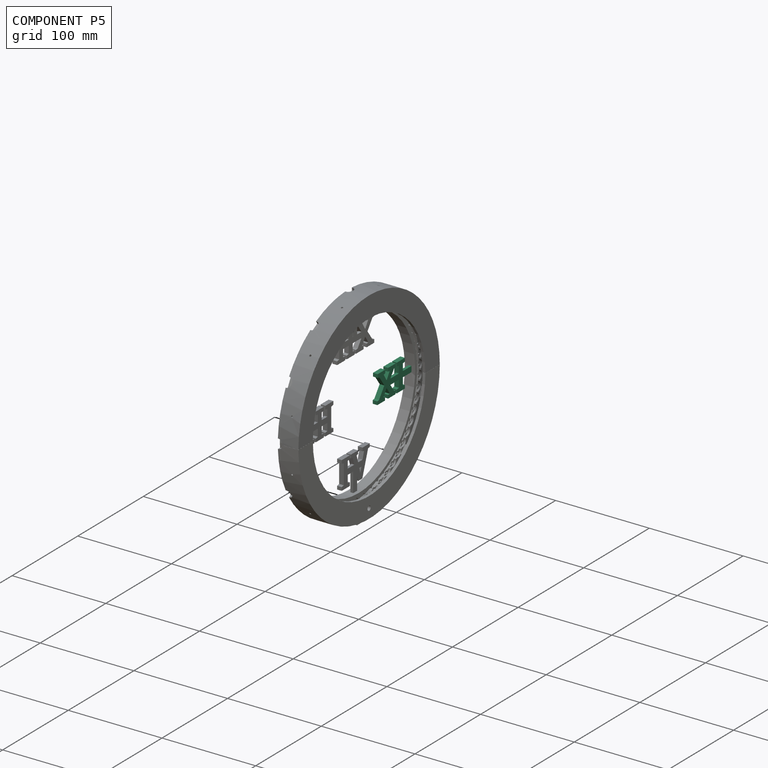
[diagram: component P5 — assembled]
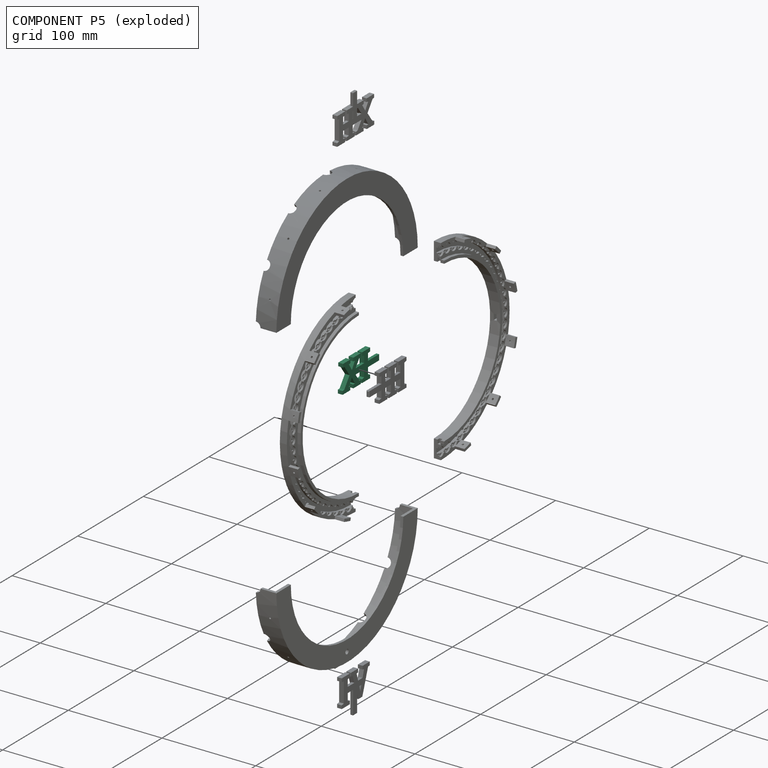
[diagram: component P5 — exploded]
COMPONENT P5 — recipe-attached (CADFS 00784755, mesh-verified: the recipe's output STEP matches this component's geometry to below the mesh-comparison resolution (tessellation chordal tolerance ~0.0954 mm)).
Held by: FASTENED mate "Fest 6" to P0.
Construction recipe (FeatureScript — the CAD program that rebuilds this solid; sketch coordinates are in the units given by the * unit suffixes, e.g. mm):

FeatureScript 2656;
import(path : "onshape/std/geometry.fs", version : "2656.0");
import(path : "onshape/std/common.fs", version : "2656.0");
const mm = millimeter;
const VERTEX = EntityType.VERTEX;
const EDGE = EntityType.EDGE;
const FACE = EntityType.FACE;
const BODY = EntityType.BODY;
function v(x, y){return vector(x, y);}
function OD(order){return orderDisambiguation(order);}
function OSD(set){return originalSetDisambiguation(set);}
function TD(topology){return topologyDisambiguation(topology);}
function TDD(query){return trueDependencyDisambiguation(query);}
function sQuery(a, b, c) {return sketchEntityQuery(a, b, c);}

annotation { "Feature Type Name" : "Feature", "Feature Type Description" : "" }
export const myFeature = defineFeature(function(context is Context, id is Id, definition is map)
    precondition{}
    {
        {
            var Q0;
            Q0=qCreatedBy(makeId("Top.planeOp"),FACE);
            var sketch = newSketch(context, id + "F0", { "sketchPlane" : qUnion([Q0])});
            skLineSegment(sketch, "E0.bottom", {"start": v(-14.7, 15) * mm, "end": v(14.7, 15) * mm, "construction": true});
            skText(sketch, "E1", { "text": "IX", "fontName": "RobotoSlab-Bold.ttf"});
            skLineSegment(sketch, "E2.bottom", {"start": v(-12.5, 3) * mm, "end": v(12.5, 3) * mm});
            skLineSegment(sketch, "E2.top", {"start": v(-12.5, -3) * mm, "end": v(12.5, -3) * mm});
            skLineSegment(sketch, "E3.bottom", {"start": v(-12.5, 3) * mm, "end": v(-35.81, 3) * mm});
            skLineSegment(sketch, "E3.top", {"start": v(-12.5, -3) * mm, "end": v(-35.81, -3) * mm});
            skLineSegment(sketch, "E3.right", {"start": v(-35.81, 3) * mm, "end": v(-35.81, -3) * mm});
            const initialGuessF0  = {"E1": [-0.02281, -0.015, 1, 0, 0.03]};
            skSetInitialGuess(sketch, initialGuessF0);
            skSolve(sketch);
        }
        {
            var Q0;
            Q0=makeQuery(id+"F0.imprint","IMPRINT",FACE,{"disambiguationData":[TD([[makeQuery(id+"F0.imprint","IMPRINT",EDGE,{"derivedFrom":sQuery(id+"F0.wireOp",EDGE,"E1.sketch_text.stroke-0")}),-1.0]])]});
            var Q1;
            {var subQ0=sQuery(id+"F0.wireOp",EDGE,"E3.bottom");var subQ1=sQuery(id+"F0.wireOp",EDGE,"E1.sketch_text.stroke-4");var subQ2=makeQuery(id+"F0.imprint","INTERSECT",VERTEX,{"derivedFrom":[subQ1,subQ0]});Q1=makeQuery(id+"F0.imprint","IMPRINT",FACE,{"disambiguationData":[TD([[makeQuery(id+"F0.imprint","IMPRINT",EDGE,{"disambiguationData":[TD([[subQ2,-1.0]])],"derivedFrom":subQ1}),-1.0]])]});}
            var Q2;
            {var subQ0=sQuery(id+"F0.wireOp",EDGE,"E1.sketch_text.stroke-5");Q2=makeQuery(id+"F0.imprint","IMPRINT",FACE,{"disambiguationData":[TD([[makeQuery(id+"F0.imprint","IMPRINT",EDGE,{"derivedFrom":subQ0}),-1.0]])]});}
            var Q3;
            {var subQ1=sQuery(id+"F0.wireOp",EDGE,"E1.sketch_text.stroke-12");Q3=makeQuery(id+"F0.imprint","IMPRINT",FACE,{"disambiguationData":[TD([[makeQuery(id+"F0.imprint","IMPRINT",EDGE,{"derivedFrom":subQ1}),-1.0]])]});}
            var Q4;
            {var subQ7=sQuery(id+"F0.wireOp",EDGE,"E1.sketch_text.stroke-14");var subQ8=sQuery(id+"F0.wireOp",EDGE,"E1.sketch_text.stroke-13");var subQ9=makeQuery(id+"F0.imprint","INTERSECT",VERTEX,{"derivedFrom":[subQ8,subQ7]});Q4=makeQuery(id+"F0.imprint","IMPRINT",FACE,{"disambiguationData":[TD([[makeQuery(id+"F0.imprint","IMPRINT",EDGE,{"disambiguationData":[TD([[subQ9,1.0]])],"derivedFrom":subQ8}),-1.0]])]});}
            var Q5;
            {var subQ5=sQuery(id+"F0.wireOp",EDGE,"E1.sketch_text.stroke-15");Q5=makeQuery(id+"F0.imprint","IMPRINT",FACE,{"disambiguationData":[TD([[makeQuery(id+"F0.imprint","IMPRINT",EDGE,{"derivedFrom":subQ5}),-1.0]])]});}
            extrude(context, id + "F1", {"entities" : qUnion([Q0, Q1, Q2, Q3, Q4, Q5]), "depth" : 5 * mm, "offsetDistance" : 25 * mm});
        }
        {
            var Q0;
            {var subQ5=sQuery(id+"F0.wireOp",EDGE,"E3.bottom");var subQ7=sQuery(id+"F0.wireOp",EDGE,"E1.sketch_text.stroke-4");var subQ8=makeQuery(id+"F0.imprint","INTERSECT",VERTEX,{"derivedFrom":[subQ7,subQ5]});Q0=makeQuery(id+"F0.imprint","IMPRINT",FACE,{"disambiguationData":[TD([[makeQuery(id+"F0.imprint","IMPRINT",EDGE,{"disambiguationData":[TD([[subQ8,-1.0]])],"derivedFrom":subQ7}),1.0]])]});}
            var Q1;
            {var subQ5=sQuery(id+"F0.wireOp",EDGE,"E3.right");Q1=makeQuery(id+"F0.imprint","IMPRINT",FACE,{"disambiguationData":[TD([[makeQuery(id+"F0.imprint","IMPRINT",EDGE,{"derivedFrom":subQ5}),1.0]])]});}
            extrude(context, id + "F2", {"entities" : qUnion([Q0, Q1]), "operationType" : NewBodyOperationType.ADD, "depth" : 3 * mm, "offsetDistance" : 25 * mm});
        }
        {
            var Q0;
            Q0=makeQuery(id+"F2.opExtrude","CAP_EDGE",EDGE,{"disambiguationData":[OSD([sQuery(id+"F0.wireOp",EDGE,"E3.right")])],"isStart":true});
            var Q1;
            Q1=makeQuery(id+"F2.opExtrude","SWEPT_EDGE",EDGE,{"disambiguationData":[OSD([sQuery(id+"F0.wireOp",EDGE,"E3.bottom"),sQuery(id+"F0.wireOp",EDGE,"E3.right")])]});
            var Q2;
            Q2=makeQuery(id+"F2.opExtrude","CAP_EDGE",EDGE,{"disambiguationData":[OSD([sQuery(id+"F0.wireOp",EDGE,"E3.right")])],"isStart":false});
            var Q3;
            Q3=makeQuery(id+"F2.opExtrude","SWEPT_EDGE",EDGE,{"disambiguationData":[OSD([sQuery(id+"F0.wireOp",EDGE,"E3.top"),sQuery(id+"F0.wireOp",EDGE,"E3.right")])]});
            chamfer(context, id + "F3", {"entities" : qUnion([Q0, Q1, Q2, Q3]), "width" : 0.5 * mm, "tangentPropagation" : true});
        }
    });
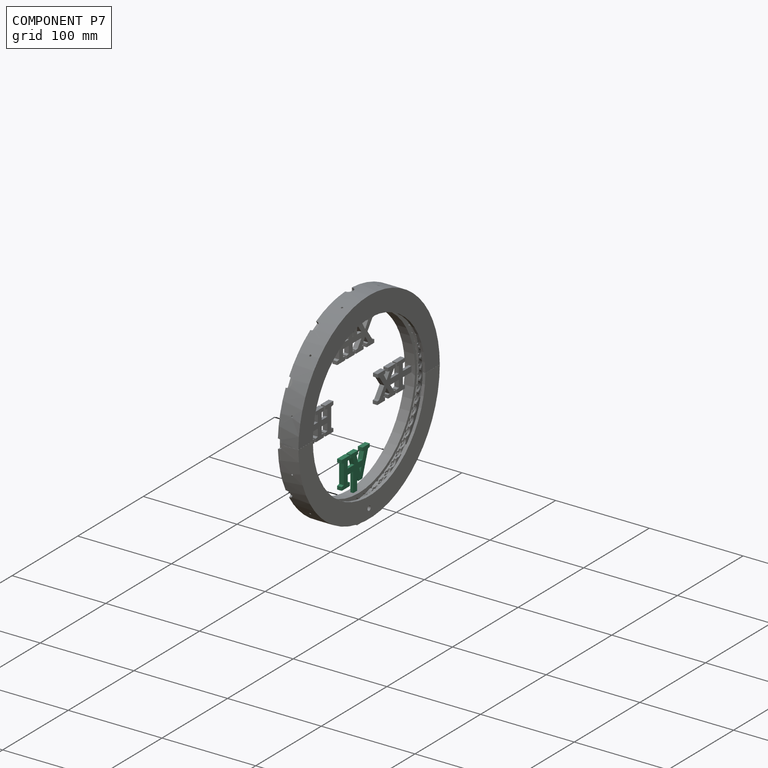
[diagram: component P7 — assembled]
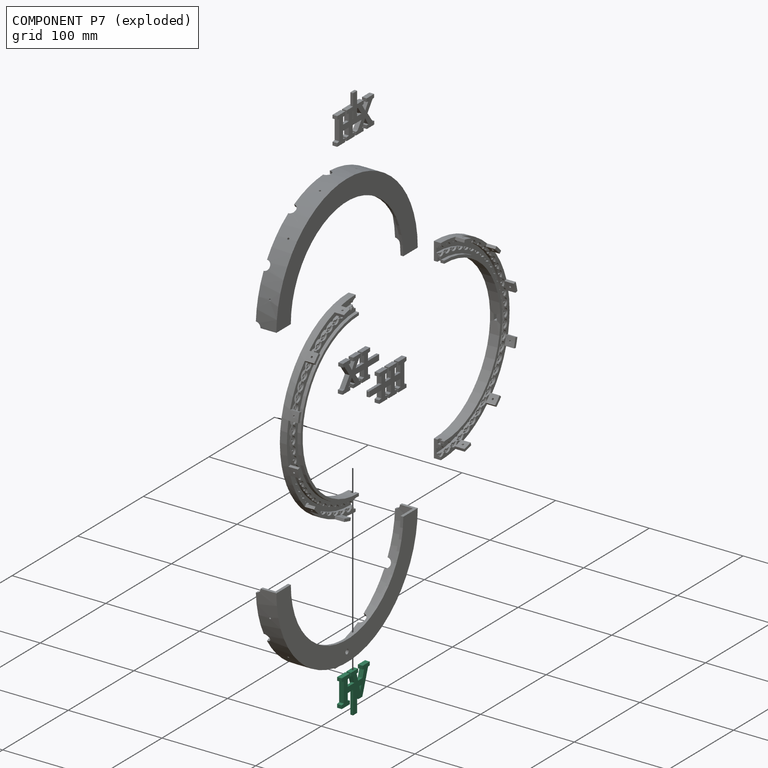
[diagram: component P7 — exploded]
COMPONENT P7 — recipe-attached (CADFS 00784756, mesh-verified: the recipe's output STEP matches this component's geometry to below the mesh-comparison resolution (tessellation chordal tolerance ~0.0907 mm)).
Held by: FASTENED mate "Fest 4" to P2.
Construction recipe (FeatureScript — the CAD program that rebuilds this solid; sketch coordinates are in the units given by the * unit suffixes, e.g. mm):

FeatureScript 2656;
import(path : "onshape/std/geometry.fs", version : "2656.0");
import(path : "onshape/std/common.fs", version : "2656.0");
const mm = millimeter;
const VERTEX = EntityType.VERTEX;
const EDGE = EntityType.EDGE;
const FACE = EntityType.FACE;
const BODY = EntityType.BODY;
function v(x, y){return vector(x, y);}
function OD(order){return orderDisambiguation(order);}
function OSD(set){return originalSetDisambiguation(set);}
function TD(topology){return topologyDisambiguation(topology);}
function TDD(query){return trueDependencyDisambiguation(query);}
function sQuery(a, b, c) {return sketchEntityQuery(a, b, c);}

annotation { "Feature Type Name" : "Feature", "Feature Type Description" : "" }
export const myFeature = defineFeature(function(context is Context, id is Id, definition is map)
    precondition{}
    {
        {
            var Q0;
            Q0=qCreatedBy(makeId("Top.planeOp"),FACE);
            var sketch = newSketch(context, id + "F0", { "sketchPlane" : qUnion([Q0])});
            skLineSegment(sketch, "E0.bottom", {"start": v(-15.46, 15) * mm, "end": v(4, 15) * mm, "construction": true});
            skText(sketch, "E1", { "text": "VI", "fontName": "RobotoSlab-Bold.ttf"});
            skLineSegment(sketch, "E2.bottom", {"start": v(-3, -3) * mm, "end": v(3, -3) * mm});
            skLineSegment(sketch, "E2.top", {"start": v(-3, -28) * mm, "end": v(3, -28) * mm});
            skLineSegment(sketch, "E2.left", {"start": v(-3, -3) * mm, "end": v(-3, -28) * mm});
            skLineSegment(sketch, "E2.right", {"start": v(3, -3) * mm, "end": v(3, -28) * mm});
            skLineSegment(sketch, "E3", {"start": v(-17.27, -3) * mm, "end": v(19.13, -3) * mm});
            skLineSegment(sketch, "E4", {"start": v(19.13, 3) * mm, "end": v(-17.27, 3) * mm});
            const initialGuessF0  = {"E1": [-0.0229, -0.015, 1, 0, 0.03]};
            skSetInitialGuess(sketch, initialGuessF0);
            skSolve(sketch);
        }
        {
            var Q0;
            {var subQ2=sQuery(id+"F0.wireOp",EDGE,"E1.sketch_text.stroke-0");Q0=makeQuery(id+"F0.imprint","IMPRINT",FACE,{"disambiguationData":[TD([[makeQuery(id+"F0.imprint","IMPRINT",EDGE,{"derivedFrom":subQ2}),-1.0]])]});}
            var Q1;
            {var subQ0=sQuery(id+"F0.wireOp",EDGE,"E4");var subQ1=sQuery(id+"F0.wireOp",EDGE,"E1.sketch_text.stroke-1");var subQ2=makeQuery(id+"F0.imprint","INTERSECT",VERTEX,{"derivedFrom":[subQ1,subQ0]});Q1=makeQuery(id+"F0.imprint","IMPRINT",FACE,{"disambiguationData":[TD([[makeQuery(id+"F0.imprint","IMPRINT",EDGE,{"disambiguationData":[TD([[subQ2,-1.0]])],"derivedFrom":subQ1}),-1.0]])]});}
            var Q2;
            {var subQ13=sQuery(id+"F0.wireOp",EDGE,"E1.sketch_text.stroke-2");Q2=makeQuery(id+"F0.imprint","IMPRINT",FACE,{"disambiguationData":[TD([[makeQuery(id+"F0.imprint","IMPRINT",EDGE,{"derivedFrom":subQ13}),-1.0]])]});}
            var Q3;
            {var subQ0=sQuery(id+"F0.wireOp",EDGE,"E2.bottom");var subQ1=sQuery(id+"F0.wireOp",EDGE,"E1.sketch_text.stroke-11");var subQ2=makeQuery(id+"F0.imprint","INTERSECT",VERTEX,{"derivedFrom":[subQ1,subQ0]});Q3=makeQuery(id+"F0.imprint","IMPRINT",FACE,{"disambiguationData":[TD([[makeQuery(id+"F0.imprint","IMPRINT",EDGE,{"disambiguationData":[TD([[subQ2,-1.0]])],"derivedFrom":subQ1}),-1.0]])]});}
            var Q4;
            {var subQ5=sQuery(id+"F0.wireOp",EDGE,"E1.sketch_text.stroke-5");var subQ7=sQuery(id+"F0.wireOp",EDGE,"E4");var subQ8=makeQuery(id+"F0.imprint","INTERSECT",VERTEX,{"derivedFrom":[subQ5,subQ7]});Q4=makeQuery(id+"F0.imprint","IMPRINT",FACE,{"disambiguationData":[TD([[makeQuery(id+"F0.imprint","IMPRINT",EDGE,{"disambiguationData":[TD([[subQ8,1.0]])],"derivedFrom":subQ5}),-1.0]])]});}
            var Q5;
            {var subQ0=sQuery(id+"F0.wireOp",EDGE,"E1.sketch_text.stroke-6");Q5=makeQuery(id+"F0.imprint","IMPRINT",FACE,{"disambiguationData":[TD([[makeQuery(id+"F0.imprint","IMPRINT",EDGE,{"derivedFrom":subQ0}),-1.0]])]});}
            var Q6;
            Q6=makeQuery(id+"F0.imprint","IMPRINT",FACE,{"disambiguationData":[TD([[makeQuery(id+"F0.imprint","IMPRINT",EDGE,{"derivedFrom":sQuery(id+"F0.wireOp",EDGE,"E1.sketch_text.stroke-18")}),-1.0]])]});
            var Q7;
            {var subQ0=sQuery(id+"F0.wireOp",EDGE,"E3");var subQ1=sQuery(id+"F0.wireOp",EDGE,"E1.sketch_text.stroke-22");var subQ2=makeQuery(id+"F0.imprint","INTERSECT",VERTEX,{"derivedFrom":[subQ1,subQ0]});Q7=makeQuery(id+"F0.imprint","IMPRINT",FACE,{"disambiguationData":[TD([[makeQuery(id+"F0.imprint","IMPRINT",EDGE,{"disambiguationData":[TD([[subQ2,1.0]])],"derivedFrom":subQ1}),-1.0]])]});}
            var Q8;
            {var subQ0=sQuery(id+"F0.wireOp",EDGE,"E1.sketch_text.stroke-23");Q8=makeQuery(id+"F0.imprint","IMPRINT",FACE,{"disambiguationData":[TD([[makeQuery(id+"F0.imprint","IMPRINT",EDGE,{"derivedFrom":subQ0}),-1.0]])]});}
            extrude(context, id + "F1", {"entities" : qUnion([Q0, Q1, Q2, Q3, Q4, Q5, Q6, Q7, Q8]), "depth" : 5 * mm, "offsetDistance" : 25 * mm});
        }
        {
            var Q0;
            {var subQ0=sQuery(id+"F0.wireOp",EDGE,"E4");var subQ1=sQuery(id+"F0.wireOp",EDGE,"E1.sketch_text.stroke-1");var subQ2=makeQuery(id+"F0.imprint","INTERSECT",VERTEX,{"derivedFrom":[subQ1,subQ0]});Q0=makeQuery(id+"F0.imprint","IMPRINT",FACE,{"disambiguationData":[TD([[makeQuery(id+"F0.imprint","IMPRINT",EDGE,{"disambiguationData":[TD([[subQ2,-1.0]])],"derivedFrom":subQ1}),1.0]])]});}
            var Q1;
            {var subQ1=sQuery(id+"F0.wireOp",EDGE,"E2.bottom");var subQ5=sQuery(id+"F0.wireOp",EDGE,"E1.sketch_text.stroke-11");var subQ6=makeQuery(id+"F0.imprint","INTERSECT",VERTEX,{"derivedFrom":[subQ5,subQ1]});Q1=makeQuery(id+"F0.imprint","IMPRINT",FACE,{"disambiguationData":[TD([[makeQuery(id+"F0.imprint","IMPRINT",EDGE,{"disambiguationData":[TD([[subQ6,1.0]])],"derivedFrom":subQ5}),1.0]])]});}
            var Q2;
            {var subQ0=sQuery(id+"F0.wireOp",EDGE,"E2.top");Q2=makeQuery(id+"F0.imprint","IMPRINT",FACE,{"disambiguationData":[TD([[makeQuery(id+"F0.imprint","IMPRINT",EDGE,{"derivedFrom":subQ0}),1.0]])]});}
            extrude(context, id + "F2", {"entities" : qUnion([Q0, Q1, Q2]), "operationType" : NewBodyOperationType.ADD, "depth" : 3 * mm, "offsetDistance" : 25 * mm});
        }
        {
            var Q0;
            Q0=makeQuery(id+"F2.opExtrude","SWEPT_EDGE",EDGE,{"disambiguationData":[OSD([sQuery(id+"F0.wireOp",EDGE,"E2.top"),sQuery(id+"F0.wireOp",EDGE,"E2.right")])]});
            var Q1;
            Q1=makeQuery(id+"F2.opExtrude","CAP_EDGE",EDGE,{"disambiguationData":[OSD([sQuery(id+"F0.wireOp",EDGE,"E2.top")])],"isStart":false});
            var Q2;
            Q2=makeQuery(id+"F2.opExtrude","SWEPT_EDGE",EDGE,{"disambiguationData":[OSD([sQuery(id+"F0.wireOp",EDGE,"E2.top"),sQuery(id+"F0.wireOp",EDGE,"E2.left")])]});
            var Q3;
            Q3=makeQuery(id+"F2.opExtrude","CAP_EDGE",EDGE,{"disambiguationData":[OSD([sQuery(id+"F0.wireOp",EDGE,"E2.top")])],"isStart":true});
            chamfer(context, id + "F3", {"entities" : qUnion([Q0, Q1, Q2, Q3]), "width" : 0.5 * mm, "tangentPropagation" : true});
        }
    });
